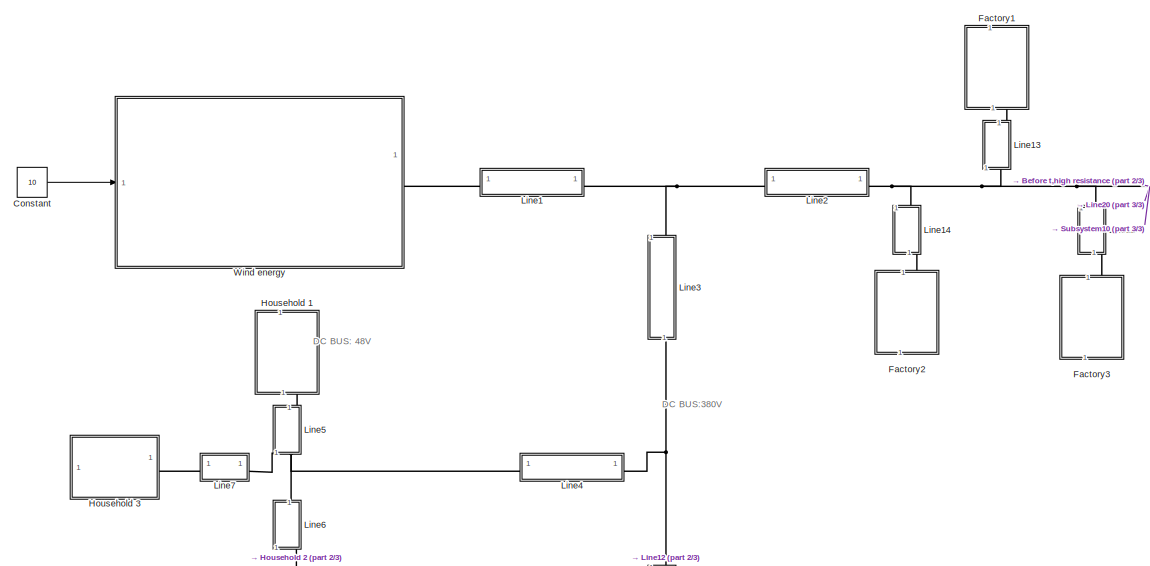
[diagram: root canvas - part 1/3, top center region]
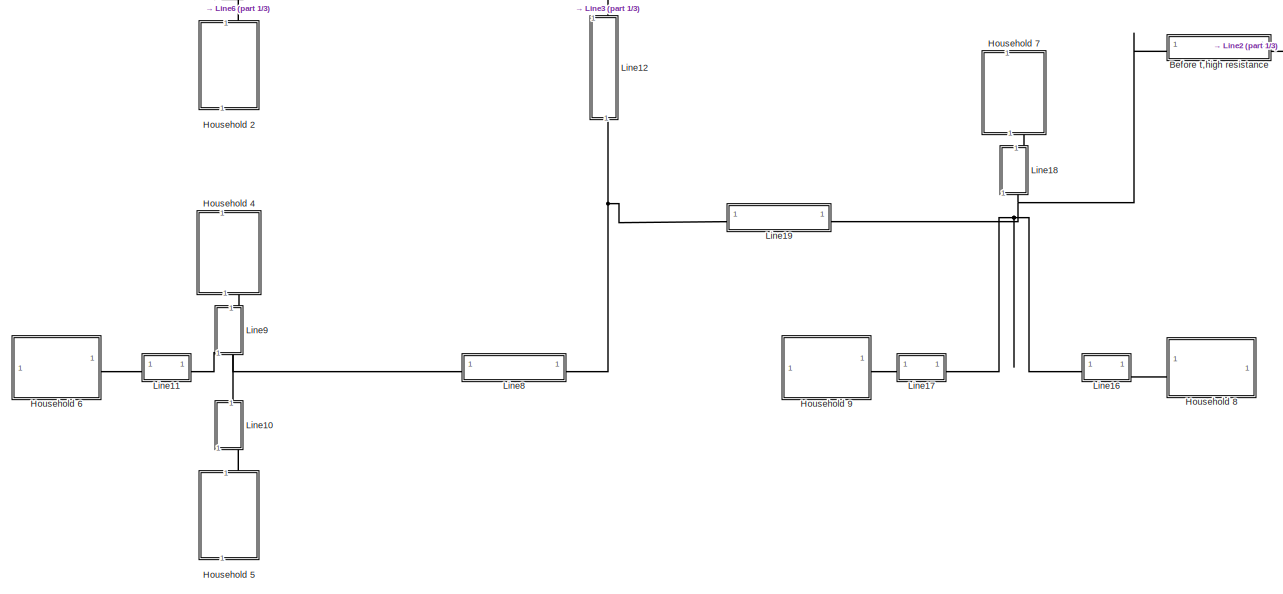
[diagram: root canvas - part 2/3, full width, bottom band]
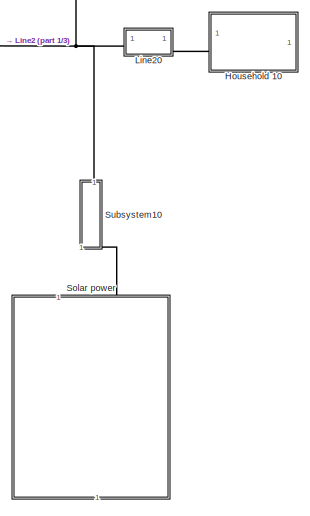
[diagram: root canvas - part 3/3, bottom right region]
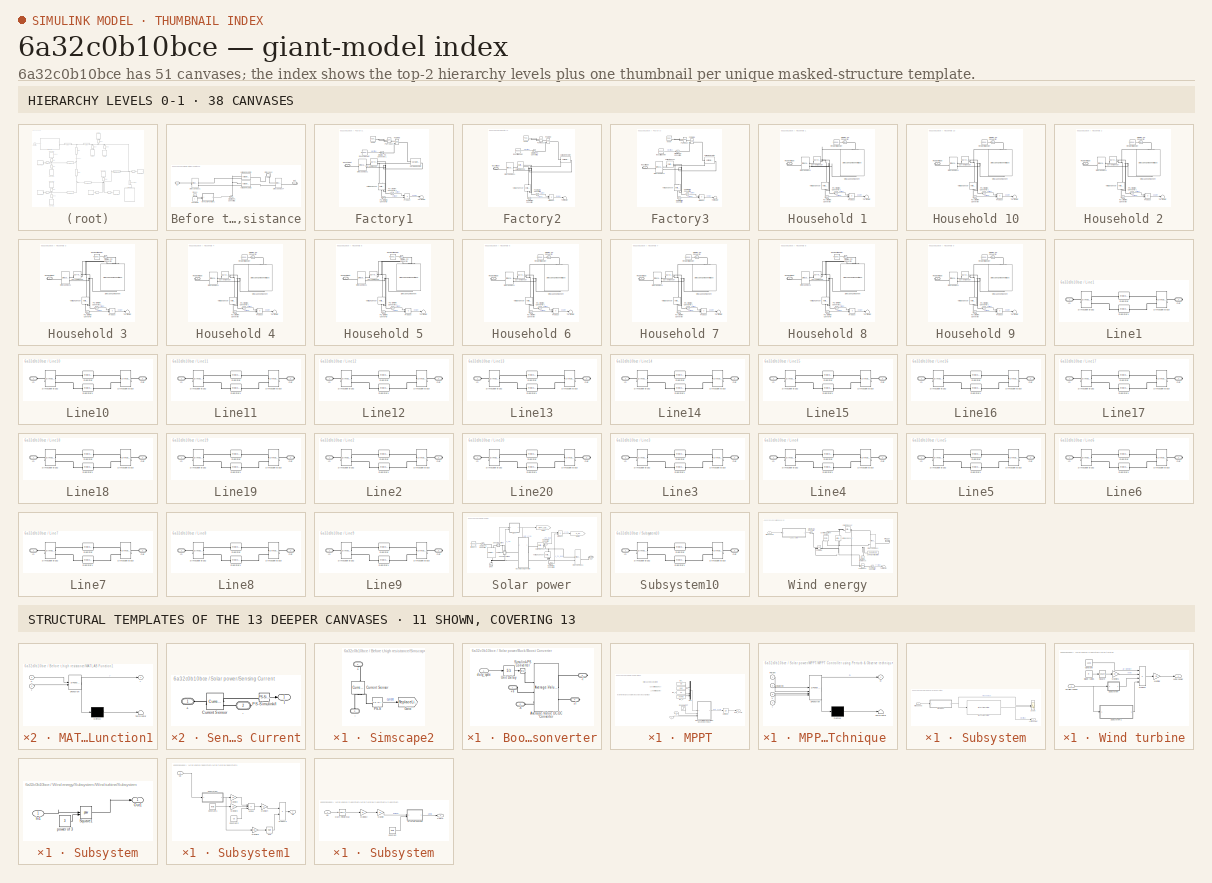
[diagram: thumbnail index - top-2 hierarchy levels (38 canvases) + 11 structural-template representatives of the remaining 13 canvases]
MODEL slx_6a32c0b10bce
KIND model
CONFIG AbsTol = auto
CONFIG EnableMultiTasking = off
CONFIG FixedStep = auto
CONFIG MaxStep = auto
CONFIG MinStep = auto
CONFIG RelTol = 1e-3
CONFIG SampleTimeConstraint = Unconstrained
CONFIG SolverName = VariableStepAuto
CONFIG StartTime = 0.0
CONFIG StopTime = 10.0
BLOCK [SubSystem] Before t,high resistance
BLOCK [Clock] Before t,high resistance/Clock1
BLOCK [Constant] Before t,high resistance/Constant2
  Value = t
BLOCK [SubSystem] Before t,high resistance/MATLAB Function1
  ErrorFcn = Stateflow.Translate.translate
  PermitHierarchicalResolution = ExplicitOnly
  SFBlockType = MATLAB Function
  TreatAsAtomicUnit = on
BLOCK [Demux] Before t,high resistance/MATLAB Function1/ Demux 
  Outputs = 1
BLOCK [S-Function] Before t,high resistance/MATLAB Function1/ SFunction 
  EnableBusSupport = on
  FunctionName = sf_sfun
  PortCounts = [2 2]
  SFcnIsStateOwnerBlock = off
  SFunctionDeploymentMode = off
  Tag = Stateflow S-Function 5
BLOCK [Terminator] Before t,high resistance/MATLAB Function1/ Terminator 
BLOCK [Inport] Before t,high resistance/MATLAB Function1/t
  Port = 2
BLOCK [Inport] Before t,high resistance/MATLAB Function1/u
BLOCK [Outport] Before t,high resistance/MATLAB Function1/y
BLOCK [SimscapeBus] Before t,high resistance/Simscape Bus1
  HierarchyStrings = High;Low
  NameLocation = top
BLOCK [SimscapeBus] Before t,high resistance/Simscape Bus4
  HierarchyStrings = High;Low
BLOCK [SubSystem] Before t,high resistance/Simscape2
  NameLocation = right
BLOCK [PMIOPort] Before t,high resistance/Simscape2/+
  NameLocation = right
  Side = Left
BLOCK [PMIOPort] Before t,high resistance/Simscape2/-
  NameLocation = left
  Port = 2
  Side = Left
BLOCK [Reference] Before t,high resistance/Simscape2/Current Sensor  REF=fl_lib/Electrical/Electrical Sensors/Current Sensor
  NameLocation = left
  SourceBlock = fl_lib/Electrical/Electrical Sensors/Current Sensor
  SourceType = Current Sensor
BLOCK [Goto] Before t,high resistance/Simscape2/Goto
  GotoTag = ReplaceLine
  IconDisplay = Signal name
  TagVisibility = global
BLOCK [Reference] Before t,high resistance/Simscape2/PS-S  REF=nesl_utility/PS-Simulink
Converter
  SourceBlock = nesl_utility/PS-Simulink\nConverter
  SourceType = PS-Simulink\nConverter
BLOCK [Reference] Before t,high resistance/Simulink-PS Converter2  REF=nesl_utility/Simulink-PS
Converter
  SourceBlock = nesl_utility/Simulink-PS\nConverter
  SourceType = Simulink-PS\nConverter
BLOCK [Reference] Before t,high resistance/Variable Resistor1  REF=fl_lib/Electrical/Electrical Elements/Variable Resistor
  SourceBlock = fl_lib/Electrical/Electrical Elements/Variable Resistor
  SourceType = Variable Resistor
BLOCK [Reference] Before t,high resistance/Variable Resistor2  REF=fl_lib/Electrical/Electrical Elements/Variable Resistor
  SourceBlock = fl_lib/Electrical/Electrical Elements/Variable Resistor
  SourceType = Variable Resistor
BLOCK [PMIOPort] Before t,high resistance/in
  Side = Left
BLOCK [PMIOPort] Before t,high resistance/out
  NameLocation = top
  Port = 2
  Side = Right
BLOCK [Constant] Constant
  Value = 10
BLOCK [SubSystem] Factory1
  NameLocation = left
BLOCK [Reference] Factory1/Current Sensor  REF=fl_lib/Electrical/Electrical Sensors/Current Sensor
  SourceBlock = fl_lib/Electrical/Electrical Sensors/Current Sensor
  SourceType = Current Sensor
BLOCK [Reference] Factory1/Industrial power   REF=simulink/Sources/Repeating
Sequence
Interpolated
  NameLocation = top
  SourceBlock = simulink/Sources/Repeating\nSequence\nInterpolated
  SourceType = Repeating Sequence Interpolated
BLOCK [PMIOPort] Factory1/IndustrialOut
  Side = Right
BLOCK [Reference] Factory1/PS Divide  REF=fl_lib/Physical Signals/Functions/PS Divide
  SourceBlock = fl_lib/Physical Signals/Functions/PS Divide
  SourceType = PS Divide
BLOCK [Reference] Factory1/PS Product  REF=fl_lib/Physical Signals/Functions/PS Product
  SourceBlock = fl_lib/Physical Signals/Functions/PS Product
  SourceType = PS Product
BLOCK [Reference] Factory1/PS-Simulink Converter  REF=nesl_utility/PS-Simulink
Converter
  SourceBlock = nesl_utility/PS-Simulink\nConverter
  SourceType = PS-Simulink\nConverter
BLOCK [Reference] Factory1/PS-Simulink Converter1  REF=nesl_utility/PS-Simulink
Converter
  SourceBlock = nesl_utility/PS-Simulink\nConverter
  SourceType = PS-Simulink\nConverter
BLOCK [Product] Factory1/Product
BLOCK [SimscapeBus] Factory1/Simscape Bus1
  HierarchyStrings = High;Low
  NameLocation = top
BLOCK [Reference] Factory1/Simulink-PS Converter1  REF=nesl_utility/Simulink-PS
Converter
  SourceBlock = nesl_utility/Simulink-PS\nConverter
  SourceType = Simulink-PS\nConverter
BLOCK [Terminator] Factory1/Terminator
BLOCK [Reference] Factory1/Variable Resistor  REF=fl_lib/Electrical/Electrical Elements/Variable Resistor
  SourceBlock = fl_lib/Electrical/Electrical Elements/Variable Resistor
  SourceType = Variable Resistor
BLOCK [Reference] Factory1/Vnom  REF=fl_lib/Physical Signals/Sources/PS Constant
  SourceBlock = fl_lib/Physical Signals/Sources/PS Constant
  SourceType = PS Constant
BLOCK [Reference] Factory1/Voltage Sensor  REF=fl_lib/Electrical/Electrical Sensors/Voltage Sensor
  NameLocation = right
  SourceBlock = fl_lib/Electrical/Electrical Sensors/Voltage Sensor
  SourceType = Voltage Sensor
BLOCK [SubSystem] Factory2
  NameLocation = right
BLOCK [Reference] Factory2/Current Sensor  REF=fl_lib/Electrical/Electrical Sensors/Current Sensor
  SourceBlock = fl_lib/Electrical/Electrical Sensors/Current Sensor
  SourceType = Current Sensor
BLOCK [Reference] Factory2/Industrial power   REF=simulink/Sources/Repeating
Sequence
Interpolated
  NameLocation = top
  SourceBlock = simulink/Sources/Repeating\nSequence\nInterpolated
  SourceType = Repeating Sequence Interpolated
BLOCK [PMIOPort] Factory2/IndustrialOut
  Side = Right
BLOCK [Reference] Factory2/PS Divide  REF=fl_lib/Physical Signals/Functions/PS Divide
  SourceBlock = fl_lib/Physical Signals/Functions/PS Divide
  SourceType = PS Divide
BLOCK [Reference] Factory2/PS Product  REF=fl_lib/Physical Signals/Functions/PS Product
  SourceBlock = fl_lib/Physical Signals/Functions/PS Product
  SourceType = PS Product
BLOCK [Reference] Factory2/PS-Simulink Converter  REF=nesl_utility/PS-Simulink
Converter
  SourceBlock = nesl_utility/PS-Simulink\nConverter
  SourceType = PS-Simulink\nConverter
BLOCK [Reference] Factory2/PS-Simulink Converter1  REF=nesl_utility/PS-Simulink
Converter
  SourceBlock = nesl_utility/PS-Simulink\nConverter
  SourceType = PS-Simulink\nConverter
BLOCK [Product] Factory2/Product
BLOCK [SimscapeBus] Factory2/Simscape Bus1
  HierarchyStrings = High;Low
  NameLocation = top
BLOCK [Reference] Factory2/Simulink-PS Converter1  REF=nesl_utility/Simulink-PS
Converter
  SourceBlock = nesl_utility/Simulink-PS\nConverter
  SourceType = Simulink-PS\nConverter
BLOCK [Terminator] Factory2/Terminator
BLOCK [Reference] Factory2/Variable Resistor  REF=fl_lib/Electrical/Electrical Elements/Variable Resistor
  SourceBlock = fl_lib/Electrical/Electrical Elements/Variable Resistor
  SourceType = Variable Resistor
BLOCK [Reference] Factory2/Vnom  REF=fl_lib/Physical Signals/Sources/PS Constant
  SourceBlock = fl_lib/Physical Signals/Sources/PS Constant
  SourceType = PS Constant
BLOCK [Reference] Factory2/Voltage Sensor  REF=fl_lib/Electrical/Electrical Sensors/Voltage Sensor
  NameLocation = right
  SourceBlock = fl_lib/Electrical/Electrical Sensors/Voltage Sensor
  SourceType = Voltage Sensor
BLOCK [SubSystem] Factory3
  NameLocation = right
BLOCK [Reference] Factory3/Current Sensor  REF=fl_lib/Electrical/Electrical Sensors/Current Sensor
  SourceBlock = fl_lib/Electrical/Electrical Sensors/Current Sensor
  SourceType = Current Sensor
BLOCK [Reference] Factory3/Industrial power   REF=simulink/Sources/Repeating
Sequence
Interpolated
  NameLocation = top
  SourceBlock = simulink/Sources/Repeating\nSequence\nInterpolated
  SourceType = Repeating Sequence Interpolated
BLOCK [PMIOPort] Factory3/IndustrialOut
  Side = Right
BLOCK [Reference] Factory3/PS Divide  REF=fl_lib/Physical Signals/Functions/PS Divide
  SourceBlock = fl_lib/Physical Signals/Functions/PS Divide
  SourceType = PS Divide
BLOCK [Reference] Factory3/PS Product  REF=fl_lib/Physical Signals/Functions/PS Product
  SourceBlock = fl_lib/Physical Signals/Functions/PS Product
  SourceType = PS Product
BLOCK [Reference] Factory3/PS-Simulink Converter  REF=nesl_utility/PS-Simulink
Converter
  SourceBlock = nesl_utility/PS-Simulink\nConverter
  SourceType = PS-Simulink\nConverter
BLOCK [Reference] Factory3/PS-Simulink Converter1  REF=nesl_utility/PS-Simulink
Converter
  SourceBlock = nesl_utility/PS-Simulink\nConverter
  SourceType = PS-Simulink\nConverter
BLOCK [Product] Factory3/Product
BLOCK [SimscapeBus] Factory3/Simscape Bus1
  HierarchyStrings = High;Low
  NameLocation = top
BLOCK [Reference] Factory3/Simulink-PS Converter1  REF=nesl_utility/Simulink-PS
Converter
  SourceBlock = nesl_utility/Simulink-PS\nConverter
  SourceType = Simulink-PS\nConverter
BLOCK [Terminator] Factory3/Terminator
BLOCK [Reference] Factory3/Variable Resistor  REF=fl_lib/Electrical/Electrical Elements/Variable Resistor
  SourceBlock = fl_lib/Electrical/Electrical Elements/Variable Resistor
  SourceType = Variable Resistor
BLOCK [Reference] Factory3/Vnom  REF=fl_lib/Physical Signals/Sources/PS Constant
  SourceBlock = fl_lib/Physical Signals/Sources/PS Constant
  SourceType = PS Constant
BLOCK [Reference] Factory3/Voltage Sensor  REF=fl_lib/Electrical/Electrical Sensors/Voltage Sensor
  NameLocation = right
  SourceBlock = fl_lib/Electrical/Electrical Sensors/Voltage Sensor
  SourceType = Voltage Sensor
BLOCK [SubSystem] Household 1
  NameLocation = left
BLOCK [Reference] Household 1/Current Sensor  REF=fl_lib/Electrical/Electrical Sensors/Current Sensor
  SourceBlock = fl_lib/Electrical/Electrical Sensors/Current Sensor
  SourceType = Current Sensor
BLOCK [Reference] Household 1/PS-Simulink Converter  REF=nesl_utility/PS-Simulink
Converter
  SourceBlock = nesl_utility/PS-Simulink\nConverter
  SourceType = PS-Simulink\nConverter
BLOCK [Reference] Household 1/PS-Simulink Converter1  REF=nesl_utility/PS-Simulink
Converter
  SourceBlock = nesl_utility/PS-Simulink\nConverter
  SourceType = PS-Simulink\nConverter
BLOCK [Product] Household 1/Product
BLOCK [Reference] Household 1/Residential power   REF=simulink/Sources/Repeating
Sequence
Interpolated
  NameLocation = top
  SourceBlock = simulink/Sources/Repeating\nSequence\nInterpolated
  SourceType = Repeating Sequence Interpolated
BLOCK [PMIOPort] Household 1/ResidentialOut
  Side = Right
BLOCK [SimscapeBus] Household 1/Simscape Bus1
  HierarchyStrings = High;Low
  NameLocation = top
BLOCK [SimscapeComponentBlock] Household 1/Simscape Component
  ClassName = ResidentialPowerLoad
  ComponentPath = ResidentialPowerLoad
  ComponentVariantNames = ["ResidentialPowerLoad"]
  ComponentVariants = ["ResidentialPowerLoad"]
  CopyFcn = simscape.engine.sli.internal.componentblockcallback(gcbh,'COPY')
  InternalSimscapePortConfiguration = {"Bottom":[],"Left":[{"id":"Power","label":"P","type":"input"},{"id":"p","label":"+","type":"foundation.electrical.electrical"}],"Right":[{"id":"n","label":"-","type":"foundation.electrical.electrical"}],"Top":[]}  <repeated x10 — deduplicated; at blocks: Simscape Component>
  MaskDisplay = color('red');plot([0 1 1 0 0],[0 0 1 1 0]);plot([0.7,1],[1,0.7]);plot(-2,-1.75);plot(3, 1);disp('\n.ssc\nUnresolved')
  MaskType = ResidentialPowerLoad
  NameLocation = left
  PreCopyFcn = simscape.engine.sli.internal.componentblockcallback(gcbh,'PRECOPY')
  PreDeleteFcn = simscape.engine.sli.internal.componentblockcallback(gcbh,'PREDELETE')
  SchemaVersion = 1
  SourceFile = ResidentialPowerLoad
  i = 0
  i_nominal_specify = off
  i_nominal_unit = A
  i_nominal_value = 1
  i_priority = None
  i_specify = off
  i_unit = A
  v = 0
  v_nominal_specify = off
  v_nominal_unit = V
  v_nominal_value = 1
  v_priority = None
  v_specify = off
  v_unit = V
BLOCK [Reference] Household 1/Simulink-PS Converter  REF=nesl_utility/Simulink-PS
Converter
  SourceBlock = nesl_utility/Simulink-PS\nConverter
  SourceType = Simulink-PS\nConverter
BLOCK [Terminator] Household 1/Terminator
BLOCK [Reference] Household 1/Voltage Sensor  REF=fl_lib/Electrical/Electrical Sensors/Voltage Sensor
  NameLocation = right
  SourceBlock = fl_lib/Electrical/Electrical Sensors/Voltage Sensor
  SourceType = Voltage Sensor
BLOCK [SubSystem] Household 10
  NameLocation = top
BLOCK [Reference] Household 10/Current Sensor  REF=fl_lib/Electrical/Electrical Sensors/Current Sensor
  SourceBlock = fl_lib/Electrical/Electrical Sensors/Current Sensor
  SourceType = Current Sensor
BLOCK [Reference] Household 10/PS-Simulink Converter  REF=nesl_utility/PS-Simulink
Converter
  SourceBlock = nesl_utility/PS-Simulink\nConverter
  SourceType = PS-Simulink\nConverter
BLOCK [Reference] Household 10/PS-Simulink Converter1  REF=nesl_utility/PS-Simulink
Converter
  SourceBlock = nesl_utility/PS-Simulink\nConverter
  SourceType = PS-Simulink\nConverter
BLOCK [Product] Household 10/Product
BLOCK [Reference] Household 10/Residential power   REF=simulink/Sources/Repeating
Sequence
Interpolated
  NameLocation = top
  SourceBlock = simulink/Sources/Repeating\nSequence\nInterpolated
  SourceType = Repeating Sequence Interpolated
BLOCK [PMIOPort] Household 10/ResidentialOut
  Side = Right
BLOCK [SimscapeBus] Household 10/Simscape Bus1
  HierarchyStrings = High;Low
  NameLocation = top
BLOCK [SimscapeComponentBlock] Household 10/Simscape Component
  ClassName = ResidentialPowerLoad
  ComponentPath = ResidentialPowerLoad
  ComponentVariantNames = ["ResidentialPowerLoad"]
  ComponentVariants = ["ResidentialPowerLoad"]
  CopyFcn = simscape.engine.sli.internal.componentblockcallback(gcbh,'COPY')
  MaskDisplay = color('red');plot([0 1 1 0 0],[0 0 1 1 0]);plot([0.7,1],[1,0.7]);plot(-2,-1.75);plot(3, 1);disp('\n.ssc\nUnresolved')
  MaskType = ResidentialPowerLoad
  NameLocation = left
  PreCopyFcn = simscape.engine.sli.internal.componentblockcallback(gcbh,'PRECOPY')
  PreDeleteFcn = simscape.engine.sli.internal.componentblockcallback(gcbh,'PREDELETE')
  SchemaVersion = 1
  SourceFile = ResidentialPowerLoad
  i = 0
  i_nominal_specify = off
  i_nominal_unit = A
  i_nominal_value = 1
  i_priority = None
  i_specify = off
  i_unit = A
  v = 0
  v_nominal_specify = off
  v_nominal_unit = V
  v_nominal_value = 1
  v_priority = None
  v_specify = off
  v_unit = V
BLOCK [Reference] Household 10/Simulink-PS Converter  REF=nesl_utility/Simulink-PS
Converter
  SourceBlock = nesl_utility/Simulink-PS\nConverter
  SourceType = Simulink-PS\nConverter
BLOCK [Terminator] Household 10/Terminator
BLOCK [Reference] Household 10/Voltage Sensor  REF=fl_lib/Electrical/Electrical Sensors/Voltage Sensor
  NameLocation = right
  SourceBlock = fl_lib/Electrical/Electrical Sensors/Voltage Sensor
  SourceType = Voltage Sensor
BLOCK [SubSystem] Household 2
  NameLocation = right
BLOCK [Reference] Household 2/Current Sensor  REF=fl_lib/Electrical/Electrical Sensors/Current Sensor
  SourceBlock = fl_lib/Electrical/Electrical Sensors/Current Sensor
  SourceType = Current Sensor
BLOCK [Reference] Household 2/PS-Simulink Converter  REF=nesl_utility/PS-Simulink
Converter
  SourceBlock = nesl_utility/PS-Simulink\nConverter
  SourceType = PS-Simulink\nConverter
BLOCK [Reference] Household 2/PS-Simulink Converter1  REF=nesl_utility/PS-Simulink
Converter
  SourceBlock = nesl_utility/PS-Simulink\nConverter
  SourceType = PS-Simulink\nConverter
BLOCK [Product] Household 2/Product
BLOCK [Reference] Household 2/Residential power   REF=simulink/Sources/Repeating
Sequence
Interpolated
  NameLocation = top
  SourceBlock = simulink/Sources/Repeating\nSequence\nInterpolated
  SourceType = Repeating Sequence Interpolated
BLOCK [PMIOPort] Household 2/ResidentialOut
  Side = Right
BLOCK [SimscapeBus] Household 2/Simscape Bus1
  HierarchyStrings = High;Low
  NameLocation = top
BLOCK [SimscapeComponentBlock] Household 2/Simscape Component
  ClassName = ResidentialPowerLoad
  ComponentPath = ResidentialPowerLoad
  ComponentVariantNames = ["ResidentialPowerLoad"]
  ComponentVariants = ["ResidentialPowerLoad"]
  CopyFcn = simscape.engine.sli.internal.componentblockcallback(gcbh,'COPY')
  MaskDisplay = color('red');plot([0 1 1 0 0],[0 0 1 1 0]);plot([0.7,1],[1,0.7]);plot(-2,-1.75);plot(3, 1);disp('\n.ssc\nUnresolved')
  MaskType = ResidentialPowerLoad
  NameLocation = left
  PreCopyFcn = simscape.engine.sli.internal.componentblockcallback(gcbh,'PRECOPY')
  PreDeleteFcn = simscape.engine.sli.internal.componentblockcallback(gcbh,'PREDELETE')
  SchemaVersion = 1
  SourceFile = ResidentialPowerLoad
  i = 0
  i_nominal_specify = off
  i_nominal_unit = A
  i_nominal_value = 1
  i_priority = None
  i_specify = off
  i_unit = A
  v = 0
  v_nominal_specify = off
  v_nominal_unit = V
  v_nominal_value = 1
  v_priority = None
  v_specify = off
  v_unit = V
BLOCK [Reference] Household 2/Simulink-PS Converter  REF=nesl_utility/Simulink-PS
Converter
  SourceBlock = nesl_utility/Simulink-PS\nConverter
  SourceType = Simulink-PS\nConverter
BLOCK [Terminator] Household 2/Terminator
BLOCK [Reference] Household 2/Voltage Sensor  REF=fl_lib/Electrical/Electrical Sensors/Voltage Sensor
  NameLocation = right
  SourceBlock = fl_lib/Electrical/Electrical Sensors/Voltage Sensor
  SourceType = Voltage Sensor
BLOCK [SubSystem] Household 3
BLOCK [Reference] Household 3/Current Sensor  REF=fl_lib/Electrical/Electrical Sensors/Current Sensor
  SourceBlock = fl_lib/Electrical/Electrical Sensors/Current Sensor
  SourceType = Current Sensor
BLOCK [Reference] Household 3/PS-Simulink Converter  REF=nesl_utility/PS-Simulink
Converter
  SourceBlock = nesl_utility/PS-Simulink\nConverter
  SourceType = PS-Simulink\nConverter
BLOCK [Reference] Household 3/PS-Simulink Converter1  REF=nesl_utility/PS-Simulink
Converter
  SourceBlock = nesl_utility/PS-Simulink\nConverter
  SourceType = PS-Simulink\nConverter
BLOCK [Product] Household 3/Product
BLOCK [Reference] Household 3/Residential power   REF=simulink/Sources/Repeating
Sequence
Interpolated
  NameLocation = top
  SourceBlock = simulink/Sources/Repeating\nSequence\nInterpolated
  SourceType = Repeating Sequence Interpolated
BLOCK [PMIOPort] Household 3/ResidentialOut
  Side = Right
BLOCK [SimscapeBus] Household 3/Simscape Bus1
  HierarchyStrings = High;Low
  NameLocation = top
BLOCK [SimscapeComponentBlock] Household 3/Simscape Component
  ClassName = ResidentialPowerLoad
  ComponentPath = ResidentialPowerLoad
  ComponentVariantNames = ["ResidentialPowerLoad"]
  ComponentVariants = ["ResidentialPowerLoad"]
  CopyFcn = simscape.engine.sli.internal.componentblockcallback(gcbh,'COPY')
  MaskDisplay = color('red');plot([0 1 1 0 0],[0 0 1 1 0]);plot([0.7,1],[1,0.7]);plot(-2,-1.75);plot(3, 1);disp('\n.ssc\nUnresolved')
  MaskType = ResidentialPowerLoad
  NameLocation = left
  PreCopyFcn = simscape.engine.sli.internal.componentblockcallback(gcbh,'PRECOPY')
  PreDeleteFcn = simscape.engine.sli.internal.componentblockcallback(gcbh,'PREDELETE')
  SchemaVersion = 1
  SourceFile = ResidentialPowerLoad
  i = 0
  i_nominal_specify = off
  i_nominal_unit = A
  i_nominal_value = 1
  i_priority = None
  i_specify = off
  i_unit = A
  v = 0
  v_nominal_specify = off
  v_nominal_unit = V
  v_nominal_value = 1
  v_priority = None
  v_specify = off
  v_unit = V
BLOCK [Reference] Household 3/Simulink-PS Converter  REF=nesl_utility/Simulink-PS
Converter
  SourceBlock = nesl_utility/Simulink-PS\nConverter
  SourceType = Simulink-PS\nConverter
BLOCK [Terminator] Household 3/Terminator
BLOCK [Reference] Household 3/Voltage Sensor  REF=fl_lib/Electrical/Electrical Sensors/Voltage Sensor
  NameLocation = right
  SourceBlock = fl_lib/Electrical/Electrical Sensors/Voltage Sensor
  SourceType = Voltage Sensor
BLOCK [SubSystem] Household 4
  NameLocation = left
BLOCK [Reference] Household 4/Current Sensor  REF=fl_lib/Electrical/Electrical Sensors/Current Sensor
  SourceBlock = fl_lib/Electrical/Electrical Sensors/Current Sensor
  SourceType = Current Sensor
BLOCK [Reference] Household 4/PS-Simulink Converter  REF=nesl_utility/PS-Simulink
Converter
  SourceBlock = nesl_utility/PS-Simulink\nConverter
  SourceType = PS-Simulink\nConverter
BLOCK [Reference] Household 4/PS-Simulink Converter1  REF=nesl_utility/PS-Simulink
Converter
  SourceBlock = nesl_utility/PS-Simulink\nConverter
  SourceType = PS-Simulink\nConverter
BLOCK [Product] Household 4/Product
BLOCK [Reference] Household 4/Residential power   REF=simulink/Sources/Repeating
Sequence
Interpolated
  NameLocation = top
  SourceBlock = simulink/Sources/Repeating\nSequence\nInterpolated
  SourceType = Repeating Sequence Interpolated
BLOCK [PMIOPort] Household 4/ResidentialOut
  Side = Right
BLOCK [SimscapeBus] Household 4/Simscape Bus1
  HierarchyStrings = High;Low
  NameLocation = top
BLOCK [SimscapeComponentBlock] Household 4/Simscape Component
  ClassName = ResidentialPowerLoad
  ComponentPath = ResidentialPowerLoad
  ComponentVariantNames = ["ResidentialPowerLoad"]
  ComponentVariants = ["ResidentialPowerLoad"]
  CopyFcn = simscape.engine.sli.internal.componentblockcallback(gcbh,'COPY')
  MaskDisplay = color('red');plot([0 1 1 0 0],[0 0 1 1 0]);plot([0.7,1],[1,0.7]);plot(-2,-1.75);plot(3, 1);disp('\n.ssc\nUnresolved')
  MaskType = ResidentialPowerLoad
  NameLocation = left
  PreCopyFcn = simscape.engine.sli.internal.componentblockcallback(gcbh,'PRECOPY')
  PreDeleteFcn = simscape.engine.sli.internal.componentblockcallback(gcbh,'PREDELETE')
  SchemaVersion = 1
  SourceFile = ResidentialPowerLoad
  i = 0
  i_nominal_specify = off
  i_nominal_unit = A
  i_nominal_value = 1
  i_priority = None
  i_specify = off
  i_unit = A
  v = 0
  v_nominal_specify = off
  v_nominal_unit = V
  v_nominal_value = 1
  v_priority = None
  v_specify = off
  v_unit = V
BLOCK [Reference] Household 4/Simulink-PS Converter  REF=nesl_utility/Simulink-PS
Converter
  SourceBlock = nesl_utility/Simulink-PS\nConverter
  SourceType = Simulink-PS\nConverter
BLOCK [Terminator] Household 4/Terminator
BLOCK [Reference] Household 4/Voltage Sensor  REF=fl_lib/Electrical/Electrical Sensors/Voltage Sensor
  NameLocation = right
  SourceBlock = fl_lib/Electrical/Electrical Sensors/Voltage Sensor
  SourceType = Voltage Sensor
BLOCK [SubSystem] Household 5
  NameLocation = right
BLOCK [Reference] Household 5/Current Sensor  REF=fl_lib/Electrical/Electrical Sensors/Current Sensor
  SourceBlock = fl_lib/Electrical/Electrical Sensors/Current Sensor
  SourceType = Current Sensor
BLOCK [Reference] Household 5/PS-Simulink Converter  REF=nesl_utility/PS-Simulink
Converter
  SourceBlock = nesl_utility/PS-Simulink\nConverter
  SourceType = PS-Simulink\nConverter
BLOCK [Reference] Household 5/PS-Simulink Converter1  REF=nesl_utility/PS-Simulink
Converter
  SourceBlock = nesl_utility/PS-Simulink\nConverter
  SourceType = PS-Simulink\nConverter
BLOCK [Product] Household 5/Product
BLOCK [Reference] Household 5/Residential power   REF=simulink/Sources/Repeating
Sequence
Interpolated
  NameLocation = top
  SourceBlock = simulink/Sources/Repeating\nSequence\nInterpolated
  SourceType = Repeating Sequence Interpolated
BLOCK [PMIOPort] Household 5/ResidentialOut
  Side = Right
BLOCK [SimscapeBus] Household 5/Simscape Bus1
  HierarchyStrings = High;Low
  NameLocation = top
BLOCK [SimscapeComponentBlock] Household 5/Simscape Component
  ClassName = ResidentialPowerLoad
  ComponentPath = ResidentialPowerLoad
  ComponentVariantNames = ["ResidentialPowerLoad"]
  ComponentVariants = ["ResidentialPowerLoad"]
  CopyFcn = simscape.engine.sli.internal.componentblockcallback(gcbh,'COPY')
  MaskDisplay = color('red');plot([0 1 1 0 0],[0 0 1 1 0]);plot([0.7,1],[1,0.7]);plot(-2,-1.75);plot(3, 1);disp('\n.ssc\nUnresolved')
  MaskType = ResidentialPowerLoad
  NameLocation = left
  PreCopyFcn = simscape.engine.sli.internal.componentblockcallback(gcbh,'PRECOPY')
  PreDeleteFcn = simscape.engine.sli.internal.componentblockcallback(gcbh,'PREDELETE')
  SchemaVersion = 1
  SourceFile = ResidentialPowerLoad
  i = 0
  i_nominal_specify = off
  i_nominal_unit = A
  i_nominal_value = 1
  i_priority = None
  i_specify = off
  i_unit = A
  v = 0
  v_nominal_specify = off
  v_nominal_unit = V
  v_nominal_value = 1
  v_priority = None
  v_specify = off
  v_unit = V
BLOCK [Reference] Household 5/Simulink-PS Converter  REF=nesl_utility/Simulink-PS
Converter
  SourceBlock = nesl_utility/Simulink-PS\nConverter
  SourceType = Simulink-PS\nConverter
BLOCK [Terminator] Household 5/Terminator
BLOCK [Reference] Household 5/Voltage Sensor  REF=fl_lib/Electrical/Electrical Sensors/Voltage Sensor
  NameLocation = right
  SourceBlock = fl_lib/Electrical/Electrical Sensors/Voltage Sensor
  SourceType = Voltage Sensor
BLOCK [SubSystem] Household 6
BLOCK [Reference] Household 6/Current Sensor  REF=fl_lib/Electrical/Electrical Sensors/Current Sensor
  SourceBlock = fl_lib/Electrical/Electrical Sensors/Current Sensor
  SourceType = Current Sensor
BLOCK [Reference] Household 6/PS-Simulink Converter  REF=nesl_utility/PS-Simulink
Converter
  SourceBlock = nesl_utility/PS-Simulink\nConverter
  SourceType = PS-Simulink\nConverter
BLOCK [Reference] Household 6/PS-Simulink Converter1  REF=nesl_utility/PS-Simulink
Converter
  SourceBlock = nesl_utility/PS-Simulink\nConverter
  SourceType = PS-Simulink\nConverter
BLOCK [Product] Household 6/Product
BLOCK [Reference] Household 6/Residential power   REF=simulink/Sources/Repeating
Sequence
Interpolated
  NameLocation = top
  SourceBlock = simulink/Sources/Repeating\nSequence\nInterpolated
  SourceType = Repeating Sequence Interpolated
BLOCK [PMIOPort] Household 6/ResidentialOut
  Side = Right
BLOCK [SimscapeBus] Household 6/Simscape Bus1
  HierarchyStrings = High;Low
  NameLocation = top
BLOCK [SimscapeComponentBlock] Household 6/Simscape Component
  ClassName = ResidentialPowerLoad
  ComponentPath = ResidentialPowerLoad
  ComponentVariantNames = ["ResidentialPowerLoad"]
  ComponentVariants = ["ResidentialPowerLoad"]
  CopyFcn = simscape.engine.sli.internal.componentblockcallback(gcbh,'COPY')
  MaskDisplay = color('red');plot([0 1 1 0 0],[0 0 1 1 0]);plot([0.7,1],[1,0.7]);plot(-2,-1.75);plot(3, 1);disp('\n.ssc\nUnresolved')
  MaskType = ResidentialPowerLoad
  NameLocation = left
  PreCopyFcn = simscape.engine.sli.internal.componentblockcallback(gcbh,'PRECOPY')
  PreDeleteFcn = simscape.engine.sli.internal.componentblockcallback(gcbh,'PREDELETE')
  SchemaVersion = 1
  SourceFile = ResidentialPowerLoad
  i = 0
  i_nominal_specify = off
  i_nominal_unit = A
  i_nominal_value = 1
  i_priority = None
  i_specify = off
  i_unit = A
  v = 0
  v_nominal_specify = off
  v_nominal_unit = V
  v_nominal_value = 1
  v_priority = None
  v_specify = off
  v_unit = V
BLOCK [Reference] Household 6/Simulink-PS Converter  REF=nesl_utility/Simulink-PS
Converter
  SourceBlock = nesl_utility/Simulink-PS\nConverter
  SourceType = Simulink-PS\nConverter
BLOCK [Terminator] Household 6/Terminator
BLOCK [Reference] Household 6/Voltage Sensor  REF=fl_lib/Electrical/Electrical Sensors/Voltage Sensor
  NameLocation = right
  SourceBlock = fl_lib/Electrical/Electrical Sensors/Voltage Sensor
  SourceType = Voltage Sensor
BLOCK [SubSystem] Household 7
  NameLocation = left
BLOCK [Reference] Household 7/Current Sensor  REF=fl_lib/Electrical/Electrical Sensors/Current Sensor
  SourceBlock = fl_lib/Electrical/Electrical Sensors/Current Sensor
  SourceType = Current Sensor
BLOCK [Reference] Household 7/PS-Simulink Converter  REF=nesl_utility/PS-Simulink
Converter
  SourceBlock = nesl_utility/PS-Simulink\nConverter
  SourceType = PS-Simulink\nConverter
BLOCK [Reference] Household 7/PS-Simulink Converter1  REF=nesl_utility/PS-Simulink
Converter
  SourceBlock = nesl_utility/PS-Simulink\nConverter
  SourceType = PS-Simulink\nConverter
BLOCK [Product] Household 7/Product
BLOCK [Reference] Household 7/Residential power   REF=simulink/Sources/Repeating
Sequence
Interpolated
  NameLocation = top
  SourceBlock = simulink/Sources/Repeating\nSequence\nInterpolated
  SourceType = Repeating Sequence Interpolated
BLOCK [PMIOPort] Household 7/ResidentialOut
  Side = Right
BLOCK [SimscapeBus] Household 7/Simscape Bus1
  HierarchyStrings = High;Low
  NameLocation = top
BLOCK [SimscapeComponentBlock] Household 7/Simscape Component
  ClassName = ResidentialPowerLoad
  ComponentPath = ResidentialPowerLoad
  ComponentVariantNames = ["ResidentialPowerLoad"]
  ComponentVariants = ["ResidentialPowerLoad"]
  CopyFcn = simscape.engine.sli.internal.componentblockcallback(gcbh,'COPY')
  MaskDisplay = color('red');plot([0 1 1 0 0],[0 0 1 1 0]);plot([0.7,1],[1,0.7]);plot(-2,-1.75);plot(3, 1);disp('\n.ssc\nUnresolved')
  MaskType = ResidentialPowerLoad
  NameLocation = left
  PreCopyFcn = simscape.engine.sli.internal.componentblockcallback(gcbh,'PRECOPY')
  PreDeleteFcn = simscape.engine.sli.internal.componentblockcallback(gcbh,'PREDELETE')
  SchemaVersion = 1
  SourceFile = ResidentialPowerLoad
  i = 0
  i_nominal_specify = off
  i_nominal_unit = A
  i_nominal_value = 1
  i_priority = None
  i_specify = off
  i_unit = A
  v = 0
  v_nominal_specify = off
  v_nominal_unit = V
  v_nominal_value = 1
  v_priority = None
  v_specify = off
  v_unit = V
BLOCK [Reference] Household 7/Simulink-PS Converter  REF=nesl_utility/Simulink-PS
Converter
  SourceBlock = nesl_utility/Simulink-PS\nConverter
  SourceType = Simulink-PS\nConverter
BLOCK [Terminator] Household 7/Terminator
BLOCK [Reference] Household 7/Voltage Sensor  REF=fl_lib/Electrical/Electrical Sensors/Voltage Sensor
  NameLocation = right
  SourceBlock = fl_lib/Electrical/Electrical Sensors/Voltage Sensor
  SourceType = Voltage Sensor
BLOCK [SubSystem] Household 8
  NameLocation = top
BLOCK [Reference] Household 8/Current Sensor  REF=fl_lib/Electrical/Electrical Sensors/Current Sensor
  SourceBlock = fl_lib/Electrical/Electrical Sensors/Current Sensor
  SourceType = Current Sensor
BLOCK [Reference] Household 8/PS-Simulink Converter  REF=nesl_utility/PS-Simulink
Converter
  SourceBlock = nesl_utility/PS-Simulink\nConverter
  SourceType = PS-Simulink\nConverter
BLOCK [Reference] Household 8/PS-Simulink Converter1  REF=nesl_utility/PS-Simulink
Converter
  SourceBlock = nesl_utility/PS-Simulink\nConverter
  SourceType = PS-Simulink\nConverter
BLOCK [Product] Household 8/Product
BLOCK [Reference] Household 8/Residential power   REF=simulink/Sources/Repeating
Sequence
Interpolated
  NameLocation = top
  SourceBlock = simulink/Sources/Repeating\nSequence\nInterpolated
  SourceType = Repeating Sequence Interpolated
BLOCK [PMIOPort] Household 8/ResidentialOut
  Side = Right
BLOCK [SimscapeBus] Household 8/Simscape Bus1
  HierarchyStrings = High;Low
  NameLocation = top
BLOCK [SimscapeComponentBlock] Household 8/Simscape Component
  ClassName = ResidentialPowerLoad
  ComponentPath = ResidentialPowerLoad
  ComponentVariantNames = ["ResidentialPowerLoad"]
  ComponentVariants = ["ResidentialPowerLoad"]
  CopyFcn = simscape.engine.sli.internal.componentblockcallback(gcbh,'COPY')
  MaskDisplay = color('red');plot([0 1 1 0 0],[0 0 1 1 0]);plot([0.7,1],[1,0.7]);plot(-2,-1.75);plot(3, 1);disp('\n.ssc\nUnresolved')
  MaskType = ResidentialPowerLoad
  NameLocation = left
  PreCopyFcn = simscape.engine.sli.internal.componentblockcallback(gcbh,'PRECOPY')
  PreDeleteFcn = simscape.engine.sli.internal.componentblockcallback(gcbh,'PREDELETE')
  SchemaVersion = 1
  SourceFile = ResidentialPowerLoad
  i = 0
  i_nominal_specify = off
  i_nominal_unit = A
  i_nominal_value = 1
  i_priority = None
  i_specify = off
  i_unit = A
  v = 0
  v_nominal_specify = off
  v_nominal_unit = V
  v_nominal_value = 1
  v_priority = None
  v_specify = off
  v_unit = V
BLOCK [Reference] Household 8/Simulink-PS Converter  REF=nesl_utility/Simulink-PS
Converter
  SourceBlock = nesl_utility/Simulink-PS\nConverter
  SourceType = Simulink-PS\nConverter
BLOCK [Terminator] Household 8/Terminator
BLOCK [Reference] Household 8/Voltage Sensor  REF=fl_lib/Electrical/Electrical Sensors/Voltage Sensor
  NameLocation = right
  SourceBlock = fl_lib/Electrical/Electrical Sensors/Voltage Sensor
  SourceType = Voltage Sensor
BLOCK [SubSystem] Household 9
BLOCK [Reference] Household 9/Current Sensor  REF=fl_lib/Electrical/Electrical Sensors/Current Sensor
  SourceBlock = fl_lib/Electrical/Electrical Sensors/Current Sensor
  SourceType = Current Sensor
BLOCK [Reference] Household 9/PS-Simulink Converter  REF=nesl_utility/PS-Simulink
Converter
  SourceBlock = nesl_utility/PS-Simulink\nConverter
  SourceType = PS-Simulink\nConverter
BLOCK [Reference] Household 9/PS-Simulink Converter1  REF=nesl_utility/PS-Simulink
Converter
  SourceBlock = nesl_utility/PS-Simulink\nConverter
  SourceType = PS-Simulink\nConverter
BLOCK [Product] Household 9/Product
BLOCK [Reference] Household 9/Residential power   REF=simulink/Sources/Repeating
Sequence
Interpolated
  NameLocation = top
  SourceBlock = simulink/Sources/Repeating\nSequence\nInterpolated
  SourceType = Repeating Sequence Interpolated
BLOCK [PMIOPort] Household 9/ResidentialOut
  Side = Right
BLOCK [SimscapeBus] Household 9/Simscape Bus1
  HierarchyStrings = High;Low
  NameLocation = top
BLOCK [SimscapeComponentBlock] Household 9/Simscape Component
  ClassName = ResidentialPowerLoad
  ComponentPath = ResidentialPowerLoad
  ComponentVariantNames = ["ResidentialPowerLoad"]
  ComponentVariants = ["ResidentialPowerLoad"]
  CopyFcn = simscape.engine.sli.internal.componentblockcallback(gcbh,'COPY')
  MaskDisplay = color('red');plot([0 1 1 0 0],[0 0 1 1 0]);plot([0.7,1],[1,0.7]);plot(-2,-1.75);plot(3, 1);disp('\n.ssc\nUnresolved')
  MaskType = ResidentialPowerLoad
  NameLocation = left
  PreCopyFcn = simscape.engine.sli.internal.componentblockcallback(gcbh,'PRECOPY')
  PreDeleteFcn = simscape.engine.sli.internal.componentblockcallback(gcbh,'PREDELETE')
  SchemaVersion = 1
  SourceFile = ResidentialPowerLoad
  i = 0
  i_nominal_specify = off
  i_nominal_unit = A
  i_nominal_value = 1
  i_priority = None
  i_specify = off
  i_unit = A
  v = 0
  v_nominal_specify = off
  v_nominal_unit = V
  v_nominal_value = 1
  v_priority = None
  v_specify = off
  v_unit = V
BLOCK [Reference] Household 9/Simulink-PS Converter  REF=nesl_utility/Simulink-PS
Converter
  SourceBlock = nesl_utility/Simulink-PS\nConverter
  SourceType = Simulink-PS\nConverter
BLOCK [Terminator] Household 9/Terminator
BLOCK [Reference] Household 9/Voltage Sensor  REF=fl_lib/Electrical/Electrical Sensors/Voltage Sensor
  NameLocation = right
  SourceBlock = fl_lib/Electrical/Electrical Sensors/Voltage Sensor
  SourceType = Voltage Sensor
BLOCK [SubSystem] Line1
  NameLocation = top
BLOCK [PMIOPort] Line1/In
  Side = Left
BLOCK [PMIOPort] Line1/Out
  Port = 2
  Side = Right
BLOCK [Reference] Line1/Resistor  REF=fl_lib/Electrical/Electrical Elements/Resistor
  SourceBlock = fl_lib/Electrical/Electrical Elements/Resistor
  SourceType = Resistor
BLOCK [Reference] Line1/Resistor1  REF=fl_lib/Electrical/Electrical Elements/Resistor
  SourceBlock = fl_lib/Electrical/Electrical Elements/Resistor
  SourceType = Resistor
BLOCK [SimscapeBus] Line1/Simscape Bus2
  HierarchyStrings = High;Low
  NameLocation = top
BLOCK [SimscapeBus] Line1/Simscape Bus3
  HierarchyStrings = High;Low
BLOCK [SubSystem] Line10
  NameLocation = left
BLOCK [PMIOPort] Line10/In
  Side = Left
BLOCK [PMIOPort] Line10/Out
  Port = 2
  Side = Right
BLOCK [Reference] Line10/Resistor  REF=fl_lib/Electrical/Electrical Elements/Resistor
  SourceBlock = fl_lib/Electrical/Electrical Elements/Resistor
  SourceType = Resistor
BLOCK [Reference] Line10/Resistor1  REF=fl_lib/Electrical/Electrical Elements/Resistor
  SourceBlock = fl_lib/Electrical/Electrical Elements/Resistor
  SourceType = Resistor
BLOCK [SimscapeBus] Line10/Simscape Bus2
  HierarchyStrings = High;Low
  NameLocation = top
BLOCK [SimscapeBus] Line10/Simscape Bus3
  HierarchyStrings = High;Low
BLOCK [SubSystem] Line11
BLOCK [PMIOPort] Line11/In
  Side = Left
BLOCK [PMIOPort] Line11/Out
  Port = 2
  Side = Right
BLOCK [Reference] Line11/Resistor  REF=fl_lib/Electrical/Electrical Elements/Resistor
  SourceBlock = fl_lib/Electrical/Electrical Elements/Resistor
  SourceType = Resistor
BLOCK [Reference] Line11/Resistor1  REF=fl_lib/Electrical/Electrical Elements/Resistor
  SourceBlock = fl_lib/Electrical/Electrical Elements/Resistor
  SourceType = Resistor
BLOCK [SimscapeBus] Line11/Simscape Bus2
  HierarchyStrings = High;Low
  NameLocation = top
BLOCK [SimscapeBus] Line11/Simscape Bus3
  HierarchyStrings = High;Low
BLOCK [SubSystem] Line12
  NameLocation = right
BLOCK [PMIOPort] Line12/In
  Side = Left
BLOCK [PMIOPort] Line12/Out
  Port = 2
  Side = Right
BLOCK [Reference] Line12/Resistor  REF=fl_lib/Electrical/Electrical Elements/Resistor
  SourceBlock = fl_lib/Electrical/Electrical Elements/Resistor
  SourceType = Resistor
BLOCK [Reference] Line12/Resistor1  REF=fl_lib/Electrical/Electrical Elements/Resistor
  SourceBlock = fl_lib/Electrical/Electrical Elements/Resistor
  SourceType = Resistor
BLOCK [SimscapeBus] Line12/Simscape Bus2
  HierarchyStrings = High;Low
  NameLocation = top
BLOCK [SimscapeBus] Line12/Simscape Bus3
  HierarchyStrings = High;Low
BLOCK [SubSystem] Line13
  NameLocation = left
BLOCK [PMIOPort] Line13/In
  Side = Left
BLOCK [PMIOPort] Line13/Out
  Port = 2
  Side = Right
BLOCK [Reference] Line13/Resistor  REF=fl_lib/Electrical/Electrical Elements/Resistor
  SourceBlock = fl_lib/Electrical/Electrical Elements/Resistor
  SourceType = Resistor
BLOCK [Reference] Line13/Resistor1  REF=fl_lib/Electrical/Electrical Elements/Resistor
  SourceBlock = fl_lib/Electrical/Electrical Elements/Resistor
  SourceType = Resistor
BLOCK [SimscapeBus] Line13/Simscape Bus2
  HierarchyStrings = High;Low
  NameLocation = top
BLOCK [SimscapeBus] Line13/Simscape Bus3
  HierarchyStrings = High;Low
BLOCK [SubSystem] Line14
  NameLocation = right
BLOCK [PMIOPort] Line14/In
  Side = Left
BLOCK [PMIOPort] Line14/Out
  Port = 2
  Side = Right
BLOCK [Reference] Line14/Resistor  REF=fl_lib/Electrical/Electrical Elements/Resistor
  SourceBlock = fl_lib/Electrical/Electrical Elements/Resistor
  SourceType = Resistor
BLOCK [Reference] Line14/Resistor1  REF=fl_lib/Electrical/Electrical Elements/Resistor
  SourceBlock = fl_lib/Electrical/Electrical Elements/Resistor
  SourceType = Resistor
BLOCK [SimscapeBus] Line14/Simscape Bus2
  HierarchyStrings = High;Low
  NameLocation = top
BLOCK [SimscapeBus] Line14/Simscape Bus3
  HierarchyStrings = High;Low
BLOCK [SubSystem] Line15
  NameLocation = right
BLOCK [PMIOPort] Line15/In
  Side = Left
BLOCK [PMIOPort] Line15/Out
  Port = 2
  Side = Right
BLOCK [Reference] Line15/Resistor  REF=fl_lib/Electrical/Electrical Elements/Resistor
  SourceBlock = fl_lib/Electrical/Electrical Elements/Resistor
  SourceType = Resistor
BLOCK [Reference] Line15/Resistor1  REF=fl_lib/Electrical/Electrical Elements/Resistor
  SourceBlock = fl_lib/Electrical/Electrical Elements/Resistor
  SourceType = Resistor
BLOCK [SimscapeBus] Line15/Simscape Bus2
  HierarchyStrings = High;Low
  NameLocation = top
BLOCK [SimscapeBus] Line15/Simscape Bus3
  HierarchyStrings = High;Low
BLOCK [SubSystem] Line16
  NameLocation = top
BLOCK [PMIOPort] Line16/In
  Side = Left
BLOCK [PMIOPort] Line16/Out
  Port = 2
  Side = Right
BLOCK [Reference] Line16/Resistor  REF=fl_lib/Electrical/Electrical Elements/Resistor
  SourceBlock = fl_lib/Electrical/Electrical Elements/Resistor
  SourceType = Resistor
BLOCK [Reference] Line16/Resistor1  REF=fl_lib/Electrical/Electrical Elements/Resistor
  SourceBlock = fl_lib/Electrical/Electrical Elements/Resistor
  SourceType = Resistor
BLOCK [SimscapeBus] Line16/Simscape Bus2
  HierarchyStrings = High;Low
  NameLocation = top
BLOCK [SimscapeBus] Line16/Simscape Bus3
  HierarchyStrings = High;Low
BLOCK [SubSystem] Line17
BLOCK [PMIOPort] Line17/In
  Side = Left
BLOCK [PMIOPort] Line17/Out
  Port = 2
  Side = Right
BLOCK [Reference] Line17/Resistor  REF=fl_lib/Electrical/Electrical Elements/Resistor
  SourceBlock = fl_lib/Electrical/Electrical Elements/Resistor
  SourceType = Resistor
BLOCK [Reference] Line17/Resistor1  REF=fl_lib/Electrical/Electrical Elements/Resistor
  SourceBlock = fl_lib/Electrical/Electrical Elements/Resistor
  SourceType = Resistor
BLOCK [SimscapeBus] Line17/Simscape Bus2
  HierarchyStrings = High;Low
  NameLocation = top
BLOCK [SimscapeBus] Line17/Simscape Bus3
  HierarchyStrings = High;Low
BLOCK [SubSystem] Line18
  NameLocation = left
BLOCK [PMIOPort] Line18/In
  Side = Left
BLOCK [PMIOPort] Line18/Out
  Port = 2
  Side = Right
BLOCK [Reference] Line18/Resistor  REF=fl_lib/Electrical/Electrical Elements/Resistor
  SourceBlock = fl_lib/Electrical/Electrical Elements/Resistor
  SourceType = Resistor
BLOCK [Reference] Line18/Resistor1  REF=fl_lib/Electrical/Electrical Elements/Resistor
  SourceBlock = fl_lib/Electrical/Electrical Elements/Resistor
  SourceType = Resistor
BLOCK [SimscapeBus] Line18/Simscape Bus2
  HierarchyStrings = High;Low
  NameLocation = top
BLOCK [SimscapeBus] Line18/Simscape Bus3
  HierarchyStrings = High;Low
BLOCK [SubSystem] Line19
  NameLocation = top
BLOCK [PMIOPort] Line19/In
  Side = Left
BLOCK [PMIOPort] Line19/Out
  Port = 2
  Side = Right
BLOCK [Reference] Line19/Resistor  REF=fl_lib/Electrical/Electrical Elements/Resistor
  SourceBlock = fl_lib/Electrical/Electrical Elements/Resistor
  SourceType = Resistor
BLOCK [Reference] Line19/Resistor1  REF=fl_lib/Electrical/Electrical Elements/Resistor
  SourceBlock = fl_lib/Electrical/Electrical Elements/Resistor
  SourceType = Resistor
BLOCK [SimscapeBus] Line19/Simscape Bus2
  HierarchyStrings = High;Low
  NameLocation = top
BLOCK [SimscapeBus] Line19/Simscape Bus3
  HierarchyStrings = High;Low
BLOCK [SubSystem] Line2
  NameLocation = top
BLOCK [PMIOPort] Line2/In
  Side = Left
BLOCK [PMIOPort] Line2/Out
  Port = 2
  Side = Right
BLOCK [Reference] Line2/Resistor  REF=fl_lib/Electrical/Electrical Elements/Resistor
  SourceBlock = fl_lib/Electrical/Electrical Elements/Resistor
  SourceType = Resistor
BLOCK [Reference] Line2/Resistor1  REF=fl_lib/Electrical/Electrical Elements/Resistor
  SourceBlock = fl_lib/Electrical/Electrical Elements/Resistor
  SourceType = Resistor
BLOCK [SimscapeBus] Line2/Simscape Bus2
  HierarchyStrings = High;Low
  NameLocation = top
BLOCK [SimscapeBus] Line2/Simscape Bus3
  HierarchyStrings = High;Low
BLOCK [SubSystem] Line20
  NameLocation = top
BLOCK [PMIOPort] Line20/In
  Side = Left
BLOCK [PMIOPort] Line20/Out
  Port = 2
  Side = Right
BLOCK [Reference] Line20/Resistor  REF=fl_lib/Electrical/Electrical Elements/Resistor
  SourceBlock = fl_lib/Electrical/Electrical Elements/Resistor
  SourceType = Resistor
BLOCK [Reference] Line20/Resistor1  REF=fl_lib/Electrical/Electrical Elements/Resistor
  SourceBlock = fl_lib/Electrical/Electrical Elements/Resistor
  SourceType = Resistor
BLOCK [SimscapeBus] Line20/Simscape Bus2
  HierarchyStrings = High;Low
  NameLocation = top
BLOCK [SimscapeBus] Line20/Simscape Bus3
  HierarchyStrings = High;Low
BLOCK [SubSystem] Line3
  NameLocation = right
BLOCK [PMIOPort] Line3/In
  Side = Left
BLOCK [PMIOPort] Line3/Out
  Port = 2
  Side = Right
BLOCK [Reference] Line3/Resistor  REF=fl_lib/Electrical/Electrical Elements/Resistor
  SourceBlock = fl_lib/Electrical/Electrical Elements/Resistor
  SourceType = Resistor
BLOCK [Reference] Line3/Resistor1  REF=fl_lib/Electrical/Electrical Elements/Resistor
  SourceBlock = fl_lib/Electrical/Electrical Elements/Resistor
  SourceType = Resistor
BLOCK [SimscapeBus] Line3/Simscape Bus2
  HierarchyStrings = High;Low
  NameLocation = top
BLOCK [SimscapeBus] Line3/Simscape Bus3
  HierarchyStrings = High;Low
BLOCK [SubSystem] Line4
BLOCK [PMIOPort] Line4/In
  Side = Left
BLOCK [PMIOPort] Line4/Out
  Port = 2
  Side = Right
BLOCK [Reference] Line4/Resistor  REF=fl_lib/Electrical/Electrical Elements/Resistor
  SourceBlock = fl_lib/Electrical/Electrical Elements/Resistor
  SourceType = Resistor
BLOCK [Reference] Line4/Resistor1  REF=fl_lib/Electrical/Electrical Elements/Resistor
  SourceBlock = fl_lib/Electrical/Electrical Elements/Resistor
  SourceType = Resistor
BLOCK [SimscapeBus] Line4/Simscape Bus2
  HierarchyStrings = High;Low
  NameLocation = top
BLOCK [SimscapeBus] Line4/Simscape Bus3
  HierarchyStrings = High;Low
BLOCK [SubSystem] Line5
  NameLocation = left
BLOCK [PMIOPort] Line5/In
  Side = Left
BLOCK [PMIOPort] Line5/Out
  Port = 2
  Side = Right
BLOCK [Reference] Line5/Resistor  REF=fl_lib/Electrical/Electrical Elements/Resistor
  SourceBlock = fl_lib/Electrical/Electrical Elements/Resistor
  SourceType = Resistor
BLOCK [Reference] Line5/Resistor1  REF=fl_lib/Electrical/Electrical Elements/Resistor
  SourceBlock = fl_lib/Electrical/Electrical Elements/Resistor
  SourceType = Resistor
BLOCK [SimscapeBus] Line5/Simscape Bus2
  HierarchyStrings = High;Low
  NameLocation = top
BLOCK [SimscapeBus] Line5/Simscape Bus3
  HierarchyStrings = High;Low
BLOCK [SubSystem] Line6
  NameLocation = left
BLOCK [PMIOPort] Line6/In
  Side = Left
BLOCK [PMIOPort] Line6/Out
  Port = 2
  Side = Right
BLOCK [Reference] Line6/Resistor  REF=fl_lib/Electrical/Electrical Elements/Resistor
  SourceBlock = fl_lib/Electrical/Electrical Elements/Resistor
  SourceType = Resistor
BLOCK [Reference] Line6/Resistor1  REF=fl_lib/Electrical/Electrical Elements/Resistor
  SourceBlock = fl_lib/Electrical/Electrical Elements/Resistor
  SourceType = Resistor
BLOCK [SimscapeBus] Line6/Simscape Bus2
  HierarchyStrings = High;Low
  NameLocation = top
BLOCK [SimscapeBus] Line6/Simscape Bus3
  HierarchyStrings = High;Low
BLOCK [SubSystem] Line7
BLOCK [PMIOPort] Line7/In
  Side = Left
BLOCK [PMIOPort] Line7/Out
  Port = 2
  Side = Right
BLOCK [Reference] Line7/Resistor  REF=fl_lib/Electrical/Electrical Elements/Resistor
  SourceBlock = fl_lib/Electrical/Electrical Elements/Resistor
  SourceType = Resistor
BLOCK [Reference] Line7/Resistor1  REF=fl_lib/Electrical/Electrical Elements/Resistor
  SourceBlock = fl_lib/Electrical/Electrical Elements/Resistor
  SourceType = Resistor
BLOCK [SimscapeBus] Line7/Simscape Bus2
  HierarchyStrings = High;Low
  NameLocation = top
BLOCK [SimscapeBus] Line7/Simscape Bus3
  HierarchyStrings = High;Low
BLOCK [SubSystem] Line8
BLOCK [PMIOPort] Line8/In
  Side = Left
BLOCK [PMIOPort] Line8/Out
  Port = 2
  Side = Right
BLOCK [Reference] Line8/Resistor  REF=fl_lib/Electrical/Electrical Elements/Resistor
  SourceBlock = fl_lib/Electrical/Electrical Elements/Resistor
  SourceType = Resistor
BLOCK [Reference] Line8/Resistor1  REF=fl_lib/Electrical/Electrical Elements/Resistor
  SourceBlock = fl_lib/Electrical/Electrical Elements/Resistor
  SourceType = Resistor
BLOCK [SimscapeBus] Line8/Simscape Bus2
  HierarchyStrings = High;Low
  NameLocation = top
BLOCK [SimscapeBus] Line8/Simscape Bus3
  HierarchyStrings = High;Low
BLOCK [SubSystem] Line9
  NameLocation = left
BLOCK [PMIOPort] Line9/In
  Side = Left
BLOCK [PMIOPort] Line9/Out
  Port = 2
  Side = Right
BLOCK [Reference] Line9/Resistor  REF=fl_lib/Electrical/Electrical Elements/Resistor
  SourceBlock = fl_lib/Electrical/Electrical Elements/Resistor
  SourceType = Resistor
BLOCK [Reference] Line9/Resistor1  REF=fl_lib/Electrical/Electrical Elements/Resistor
  SourceBlock = fl_lib/Electrical/Electrical Elements/Resistor
  SourceType = Resistor
BLOCK [SimscapeBus] Line9/Simscape Bus2
  HierarchyStrings = High;Low
  NameLocation = top
BLOCK [SimscapeBus] Line9/Simscape Bus3
  HierarchyStrings = High;Low
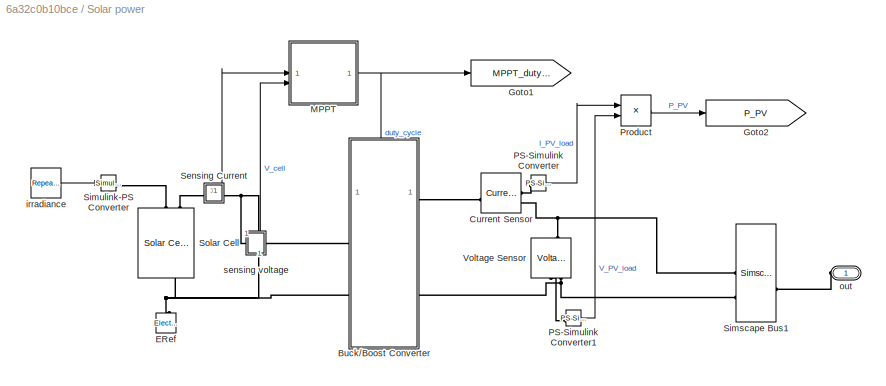
BLOCK [SubSystem] Solar power
  NameLocation = left
BLOCK [SubSystem] Solar power/Buck//Boost Converter
  PortSchema = {"entries":[{"content":{"sides":[{"content":{"connectorIds":["LConn1","LConn2"]},"type":"ConnectorPlacement.EquallySpacedRectSide","uuid":"5c021c6f-6d43-4834-8d7d-5513bb4d55a2"},{"content":{"connectorIds":["RConn1","RConn2"],"side":"RIGHT"},"type":"ConnectorPlacement.EquallySpacedRectSide","uuid":"9a583822-2cc1-49ae-b5aa-706b08d37e90"},{"content":{"connectorIds":["In1"],"side":"TOP"},"type":"Conne...<+268ch>
BLOCK [PMIOPort] Solar power/Buck//Boost Converter/+l
  Port = 4
  Side = Right
BLOCK [PMIOPort] Solar power/Buck//Boost Converter/+s
  Side = Left
BLOCK [PMIOPort] Solar power/Buck//Boost Converter/-l
  Port = 3
  Side = Right
BLOCK [PMIOPort] Solar power/Buck//Boost Converter/-s
  Port = 2
  Side = Left
BLOCK [Reference] Solar power/Buck//Boost Converter/Average-Value DC-DC Converter  REF=ee_lib/Semiconductors &
Converters/Converters/Average-Value DC-DC
Converter
  SourceBlock = ee_lib/Semiconductors &\nConverters/Converters/Average-Value DC-DC\nConverter
  SourceType = Average-Value DC-DC\nConverter
BLOCK [Reference] Solar power/Buck//Boost Converter/Simulink-PS Converter  REF=nesl_utility/Simulink-PS
Converter
  SourceBlock = nesl_utility/Simulink-PS\nConverter
  SourceType = Simulink-PS\nConverter
BLOCK [UnitDelay] Solar power/Buck//Boost Converter/Unit Delay
  HasFrameUpgradeWarning = on
  InitialCondition = 0.8
  SampleTime = -1
BLOCK [Inport] Solar power/Buck//Boost Converter/duty_cycle
BLOCK [Reference] Solar power/Current Sensor  REF=fl_lib/Electrical/Electrical Sensors/Current Sensor
  SourceBlock = fl_lib/Electrical/Electrical Sensors/Current Sensor
  SourceType = Current Sensor
BLOCK [Reference] Solar power/ERef  REF=fl_lib/Electrical/Electrical Elements/Electrical Reference
  NameLocation = right
  SourceBlock = fl_lib/Electrical/Electrical Elements/Electrical Reference
  SourceType = Electrical Reference
BLOCK [Goto] Solar power/Goto1
  GotoTag = MPPT_duty_cycle
  TagVisibility = global
BLOCK [Goto] Solar power/Goto2
  GotoTag = P_PV
  TagVisibility = global
BLOCK [SubSystem] Solar power/MPPT
BLOCK [Step] Solar power/MPPT/Enable MPPT
  NameLocation = top
  SampleTime = 0.0001
  Time = 0.1
BLOCK [Inport] Solar power/MPPT/I
BLOCK [Constant] Solar power/MPPT/Iph_
  Value = 0.8
BLOCK [Constant] Solar power/MPPT/Iph_1
  Value = 0.85
BLOCK [Constant] Solar power/MPPT/Iph_2
  Value = 0.1
BLOCK [Constant] Solar power/MPPT/Iph_3
  Value = 3e-3*0.5
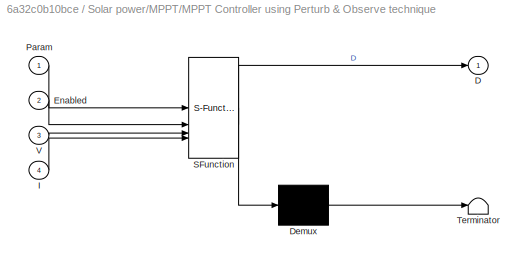
BLOCK [SubSystem] Solar power/MPPT/MPPT Controller using Perturb & Observe technique 
  ErrorFcn = Stateflow.Translate.translate
  NameLocation = top
  PermitHierarchicalResolution = ExplicitOnly
  SFBlockType = MATLAB Function
  SystemSampleTime = Ts
  TreatAsGroupedWhenPropagatingVariantConditions = off
BLOCK [Demux] Solar power/MPPT/MPPT Controller using Perturb & Observe technique / Demux 
  Outputs = 1
BLOCK [S-Function] Solar power/MPPT/MPPT Controller using Perturb & Observe technique / SFunction 
  EnableBusSupport = on
  FunctionName = sf_sfun
  PortCounts = [4 2]
  SFcnIsStateOwnerBlock = off
  SFunctionDeploymentMode = off
  Tag = Stateflow S-Function 3
BLOCK [Terminator] Solar power/MPPT/MPPT Controller using Perturb & Observe technique / Terminator 
BLOCK [Outport] Solar power/MPPT/MPPT Controller using Perturb & Observe technique /D
  VectorParamsAs1DForOutWhenUnconnected = off
BLOCK [Inport] Solar power/MPPT/MPPT Controller using Perturb & Observe technique /Enabled
  Port = 2
BLOCK [Inport] Solar power/MPPT/MPPT Controller using Perturb & Observe technique /I
  Port = 4
BLOCK [Inport] Solar power/MPPT/MPPT Controller using Perturb & Observe technique /Param
BLOCK [Inport] Solar power/MPPT/MPPT Controller using Perturb & Observe technique /V
  Port = 3
BLOCK [Mux] Solar power/MPPT/Mux
  DisplayOption = bar
BLOCK [UnitDelay] Solar power/MPPT/Unit Delay
  HasFrameUpgradeWarning = on
  InitialCondition = 0.5
  SampleTime = -1
BLOCK [Inport] Solar power/MPPT/V
  Port = 2
BLOCK [Outport] Solar power/MPPT/duty_cycle
BLOCK [Reference] Solar power/PS-Simulink Converter  REF=nesl_utility/PS-Simulink
Converter
  SourceBlock = nesl_utility/PS-Simulink\nConverter
  SourceType = PS-Simulink\nConverter
BLOCK [Reference] Solar power/PS-Simulink Converter1  REF=nesl_utility/PS-Simulink
Converter
  SourceBlock = nesl_utility/PS-Simulink\nConverter
  SourceType = PS-Simulink\nConverter
BLOCK [Product] Solar power/Product
BLOCK [SubSystem] Solar power/Sensing Current
  PortSchema = {"entries":[{"content":{"sides":[{"content":{"connectorIds":["LConn1"]},"type":"ConnectorPlacement.EquallySpacedRectSide","uuid":"08eaf192-3836-4d70-9f6a-c3aee0977ea6"},{"content":{"connectorIds":["RConn1"],"side":"RIGHT"},"type":"ConnectorPlacement.EquallySpacedRectSide","uuid":"69615d36-c1bf-4d31-b3e4-77c73286e7c7"},{"content":{"connectorIds":["Out1"],"side":"TOP"},"type":"ConnectorPlacement.Equ...<+251ch>
BLOCK [PMIOPort] Solar power/Sensing Current/+
  Side = Left
BLOCK [PMIOPort] Solar power/Sensing Current/-
  Port = 2
  Side = Right
BLOCK [Reference] Solar power/Sensing Current/Current Sensor  REF=fl_lib/Electrical/Electrical Sensors/Current Sensor
  SourceBlock = fl_lib/Electrical/Electrical Sensors/Current Sensor
  SourceType = Current Sensor
BLOCK [Outport] Solar power/Sensing Current/I
BLOCK [Reference] Solar power/Sensing Current/PS-Simulink//I  REF=nesl_utility/PS-Simulink
Converter
  SourceBlock = nesl_utility/PS-Simulink\nConverter
  SourceType = PS-Simulink\nConverter
BLOCK [SimscapeBus] Solar power/Simscape Bus1
  HierarchyStrings = High;Low
BLOCK [Reference] Solar power/Simulink-PS Converter  REF=nesl_utility/Simulink-PS
Converter
  SourceBlock = nesl_utility/Simulink-PS\nConverter
  SourceType = Simulink-PS\nConverter
BLOCK [Reference] Solar power/Solar Cell  REF=ee_lib/Sources/Solar Cell
  AttributesFormatString = Amerisolar:AS_6M30_HC_320W
  NameLocation = left
  SourceBlock = ee_lib/Sources/Solar Cell
  SourceType = Solar Cell
  Tag = {'toolbox/physmod/elec/library/m/ee_lib_parts';'Sources/Solar_Cell/Amerisolar/AS_6M30_HC_320W.xml'}
BLOCK [Reference] Solar power/Voltage Sensor  REF=fl_lib/Electrical/Electrical Sensors/Voltage Sensor
  NameLocation = right
  SourceBlock = fl_lib/Electrical/Electrical Sensors/Voltage Sensor
  SourceType = Voltage Sensor
BLOCK [Reference] Solar power/irradiance   REF=simulink/Sources/Repeating
Sequence
Interpolated
  NameLocation = top
  SourceBlock = simulink/Sources/Repeating\nSequence\nInterpolated
  SourceType = Repeating Sequence Interpolated
BLOCK [PMIOPort] Solar power/out
  NameLocation = top
  Side = Left
BLOCK [SubSystem] Solar power/sensing voltage
  NameLocation = left
  PortSchema = {"entries":[{"content":{"sides":[{"content":{"connectorIds":["LConn1"]},"type":"ConnectorPlacement.EquallySpacedRectSide","uuid":"08eaf192-3836-4d70-9f6a-c3aee0977ea6"},{"content":{"connectorIds":["RConn1"],"side":"RIGHT"},"type":"ConnectorPlacement.EquallySpacedRectSide","uuid":"69615d36-c1bf-4d31-b3e4-77c73286e7c7"},{"content":{"connectorIds":[],"side":"TOP"},"type":"ConnectorPlacement.EquallySp...<+395ch>
BLOCK [PMIOPort] Solar power/sensing voltage/+
  NameLocation = left
  Side = Left
BLOCK [PMIOPort] Solar power/sensing voltage/-
  NameLocation = left
  Port = 2
  Side = Right
BLOCK [Reference] Solar power/sensing voltage/PS-Simulink Converter  REF=nesl_utility/PS-Simulink
Converter
  SourceBlock = nesl_utility/PS-Simulink\nConverter
  SourceType = PS-Simulink\nConverter
BLOCK [Outport] Solar power/sensing voltage/V
BLOCK [Reference] Solar power/sensing voltage/Voltage Sensor  REF=fl_lib/Electrical/Electrical Sensors/Voltage Sensor
  NameLocation = right
  SourceBlock = fl_lib/Electrical/Electrical Sensors/Voltage Sensor
  SourceType = Voltage Sensor
BLOCK [SubSystem] Subsystem10
  NameLocation = right
BLOCK [PMIOPort] Subsystem10/In
  Side = Left
BLOCK [PMIOPort] Subsystem10/Out
  Port = 2
  Side = Right
BLOCK [Reference] Subsystem10/Resistor  REF=fl_lib/Electrical/Electrical Elements/Resistor
  SourceBlock = fl_lib/Electrical/Electrical Elements/Resistor
  SourceType = Resistor
BLOCK [Reference] Subsystem10/Resistor1  REF=fl_lib/Electrical/Electrical Elements/Resistor
  SourceBlock = fl_lib/Electrical/Electrical Elements/Resistor
  SourceType = Resistor
BLOCK [SimscapeBus] Subsystem10/Simscape Bus2
  HierarchyStrings = High;Low
  NameLocation = top
BLOCK [SimscapeBus] Subsystem10/Simscape Bus3
  HierarchyStrings = High;Low
BLOCK [SubSystem] Wind energy
BLOCK [Reference] Wind energy/Controlled Current Source  REF=fl_lib/Electrical/Electrical Sources/Controlled Current
Source
  NameLocation = right
  SourceBlock = fl_lib/Electrical/Electrical Sources/Controlled Current\nSource
  SourceType = Controlled Current\nSource
BLOCK [Reference] Wind energy/Current Sensor  REF=fl_lib/Electrical/Electrical Sensors/Current Sensor
  SourceBlock = fl_lib/Electrical/Electrical Sensors/Current Sensor
  SourceType = Current Sensor
BLOCK [Reference] Wind energy/Electrical Reference  REF=fl_lib/Electrical/Electrical Elements/Electrical Reference
  NameLocation = right
  SourceBlock = fl_lib/Electrical/Electrical Elements/Electrical Reference
  SourceType = Electrical Reference
BLOCK [Reference] Wind energy/PS Divide  REF=fl_lib/Physical Signals/Functions/PS Divide
  SourceBlock = fl_lib/Physical Signals/Functions/PS Divide
  SourceType = PS Divide
BLOCK [Reference] Wind energy/PS Product  REF=fl_lib/Physical Signals/Functions/PS Product
  SourceBlock = fl_lib/Physical Signals/Functions/PS Product
  SourceType = PS Product
BLOCK [Reference] Wind energy/PS-Simulink Converter  REF=nesl_utility/PS-Simulink
Converter
  SourceBlock = nesl_utility/PS-Simulink\nConverter
  SourceType = PS-Simulink\nConverter
BLOCK [SimscapeBus] Wind energy/Simscape Bus1
  HierarchyStrings = High;Low
BLOCK [Reference] Wind energy/Simulink-PS Converter  REF=nesl_utility/Simulink-PS
Converter
  SourceBlock = nesl_utility/Simulink-PS\nConverter
  SourceType = Simulink-PS\nConverter
BLOCK [Reference] Wind energy/Solver Configuration  REF=nesl_utility/Solver
Configuration
  NameLocation = top
  SourceBlock = nesl_utility/Solver\nConfiguration
  SourceType = Solver\nConfiguration
BLOCK [SubSystem] Wind energy/Subsystem
BLOCK [Outport] Wind energy/Subsystem/Acitve power
BLOCK [MATLABSystem] Wind energy/Subsystem/MATLAB System
  MaskDisplay = disp('windturbine_pitch_control');\nport_label('input',1,'P_mechanic');\nport_label('output',1,'P');
  MaskType = windturbine_pitch_control
  SimulateUsing = Code generation
  System = windturbine_pitch_control
  Ts = 0.01
  inertia_dynamicsTimeConstant = 3
  turbine_Pinst = 1e6
  turbine_dynamicsTimeConstant = 5
BLOCK [Scope] Wind energy/Subsystem/Scope
  Floating = off
  NumInputPorts = 2
  ScopeSpecificationString = Simulink.scopes.TimeScopeBlockCfg('CurrentConfiguration', extmgr.ConfigurationSet(extmgr.Configuration('Core','General UI',true),extmgr.Configuration('Core','Source UI',true),extmgr.Configuration('Sources','WiredSimulink',true),extmgr.Configuration('Visuals','Time Domain',true,'SerializedDisplays',{struct('MinYLimReal','-133306.47206','MaxYLimReal','1199768.9132','YLabelReal','','MinYLimMag','    ...<+1536ch>
BLOCK [Inport] Wind energy/Subsystem/Wind speed
BLOCK [SubSystem] Wind energy/Subsystem/Wind turbine
BLOCK [Constant] Wind energy/Subsystem/Wind turbine/Blade radius
  Value = R
BLOCK [Constant] Wind energy/Subsystem/Wind turbine/Constant
  Value = 1.225
BLOCK [Gain] Wind energy/Subsystem/Wind turbine/Multiply
  Gain = 1/2
BLOCK [Gain] Wind energy/Subsystem/Wind turbine/Multiply1
  Gain = pi
BLOCK [Product] Wind energy/Subsystem/Wind turbine/Product
  Inputs = 4
BLOCK [Math] Wind energy/Subsystem/Wind turbine/Square
  Operator = square
BLOCK [SubSystem] Wind energy/Subsystem/Wind turbine/Subsystem
BLOCK [Inport] Wind energy/Subsystem/Wind turbine/Subsystem/In1
BLOCK [Outport] Wind energy/Subsystem/Wind turbine/Subsystem/Out1
BLOCK [Math] Wind energy/Subsystem/Wind turbine/Subsystem/Square1
  Operator = pow
BLOCK [Constant] Wind energy/Subsystem/Wind turbine/Subsystem/power of 3
  Value = 3
BLOCK [SubSystem] Wind energy/Subsystem/Wind turbine/Subsystem1
BLOCK [Constant] Wind energy/Subsystem/Wind turbine/Subsystem1/Constant1
  Value = theta
BLOCK [Constant] Wind energy/Subsystem/Wind turbine/Subsystem1/Constant2
  Value = C5
BLOCK [Outport] Wind energy/Subsystem/Wind turbine/Subsystem1/Cp
BLOCK [Sum] Wind energy/Subsystem/Wind turbine/Subsystem1/Minus
  IconShape = rectangular
  Inputs = +--
BLOCK [Gain] Wind energy/Subsystem/Wind turbine/Subsystem1/Multiply2
  Gain = C2
BLOCK [Gain] Wind energy/Subsystem/Wind turbine/Subsystem1/Multiply3
  Gain = C3
BLOCK [Gain] Wind energy/Subsystem/Wind turbine/Subsystem1/Multiply4
  Gain = C1
BLOCK [Gain] Wind energy/Subsystem/Wind turbine/Subsystem1/Multiply5
  Gain = -C6
BLOCK [Product] Wind energy/Subsystem/Wind turbine/Subsystem1/Product1
BLOCK [SubSystem] Wind energy/Subsystem/Wind turbine/Subsystem1/Subsystem
BLOCK [Outport] Wind energy/Subsystem/Wind turbine/Subsystem1/Subsystem/1//beta
BLOCK [Constant] Wind energy/Subsystem/Wind turbine/Subsystem1/Subsystem/Constant
  Value = theta
BLOCK [SubSystem] Wind energy/Subsystem/Wind turbine/Subsystem1/Subsystem/MATLAB Function
  ErrorFcn = Stateflow.Translate.translate
  PermitHierarchicalResolution = ExplicitOnly
  SFBlockType = MATLAB Function
  TreatAsAtomicUnit = on
BLOCK [Demux] Wind energy/Subsystem/Wind turbine/Subsystem1/Subsystem/MATLAB Function/ Demux 
  Outputs = 1
BLOCK [S-Function] Wind energy/Subsystem/Wind turbine/Subsystem1/Subsystem/MATLAB Function/ SFunction 
  EnableBusSupport = on
  FunctionName = sf_sfun
  PortCounts = [2 2]
  SFcnIsStateOwnerBlock = off
  SFunctionDeploymentMode = off
  Tag = Stateflow S-Function 1
BLOCK [Terminator] Wind energy/Subsystem/Wind turbine/Subsystem1/Subsystem/MATLAB Function/ Terminator 
BLOCK [Outport] Wind energy/Subsystem/Wind turbine/Subsystem1/Subsystem/MATLAB Function/beta
  VectorParamsAs1DForOutWhenUnconnected = off
BLOCK [Inport] Wind energy/Subsystem/Wind turbine/Subsystem1/Subsystem/MATLAB Function/lambda
BLOCK [Inport] Wind energy/Subsystem/Wind turbine/Subsystem1/Subsystem/MATLAB Function/theta
  Port = 2
BLOCK [Math] Wind energy/Subsystem/Wind turbine/Subsystem1/Subsystem/Math Reciprocal
  Operator = reciprocal
  SignedPower = on
BLOCK [Gain] Wind energy/Subsystem/Wind turbine/Subsystem1/Subsystem/Multiply
  Gain = R
BLOCK [Gain] Wind energy/Subsystem/Wind turbine/Subsystem1/Subsystem/Multiply2
  Gain = W
BLOCK [Inport] Wind energy/Subsystem/Wind turbine/Subsystem1/Subsystem/Vw
BLOCK [Inport] Wind energy/Subsystem/Wind turbine/Subsystem1/Vw
BLOCK [Math] Wind energy/Subsystem/Wind turbine/Subsystem1/exp
BLOCK [Inport] Wind energy/Subsystem/Wind turbine/Vw wind speed
BLOCK [Outport] Wind energy/Subsystem/Wind turbine/Wind power
BLOCK [Terminator] Wind energy/Terminator
BLOCK [Reference] Wind energy/Voltage Sensor  REF=fl_lib/Electrical/Electrical Sensors/Voltage Sensor
  NameLocation = right
  SourceBlock = fl_lib/Electrical/Electrical Sensors/Voltage Sensor
  SourceType = Voltage Sensor
BLOCK [Inport] Wind energy/Wind speed
BLOCK [PMIOPort] Wind energy/WindOut
  Side = Right
ANNOTATION (root): DC BUS: 48V
ANNOTATION (root): DC BUS:380V
ANNOTATION Solar power/MPPT: Increment value used to increase/decrease (DeltaD)
ANNOTATION Solar power/MPPT: Initial value for D output (Dinit)
ANNOTATION Solar power/MPPT: Lower limit for D (Dmin)
ANNOTATION Solar power/MPPT: Upper limit for D (Dmax)
LINE Before t,high resistance/Clock1:1 -> Before t,high resistance/MATLAB Function1:1
LINE Before t,high resistance/Constant2:1 -> Before t,high resistance/MATLAB Function1:2
LINE Before t,high resistance/MATLAB Function1:1 -> Before t,high resistance/Simulink-PS Converter2:1
LINE Before t,high resistance/Simscape2/PS-S:1 -> Before t,high resistance/Simscape2/Goto:1
LINE Constant:1 -> Wind energy:1
LINE Factory1/Industrial power :1 -> Factory1/Simulink-PS Converter1:1
LINE Factory1/PS-Simulink Converter1:1 -> Factory1/Product:1
LINE Factory1/PS-Simulink Converter:1 -> Factory1/Product:2
LINE Factory1/Product:1 -> Factory1/Terminator:1
LINE Factory2/Industrial power :1 -> Factory2/Simulink-PS Converter1:1
LINE Factory2/PS-Simulink Converter1:1 -> Factory2/Product:1
LINE Factory2/PS-Simulink Converter:1 -> Factory2/Product:2
LINE Factory2/Product:1 -> Factory2/Terminator:1
LINE Factory3/Industrial power :1 -> Factory3/Simulink-PS Converter1:1
LINE Factory3/PS-Simulink Converter1:1 -> Factory3/Product:1
LINE Factory3/PS-Simulink Converter:1 -> Factory3/Product:2
LINE Factory3/Product:1 -> Factory3/Terminator:1
LINE Household 1/PS-Simulink Converter1:1 -> Household 1/Product:1
LINE Household 1/PS-Simulink Converter:1 -> Household 1/Product:2
LINE Household 1/Product:1 -> Household 1/Terminator:1
LINE Household 1/Residential power :1 -> Household 1/Simulink-PS Converter:1
LINE Household 10/PS-Simulink Converter1:1 -> Household 10/Product:1
LINE Household 10/PS-Simulink Converter:1 -> Household 10/Product:2
LINE Household 10/Product:1 -> Household 10/Terminator:1
LINE Household 10/Residential power :1 -> Household 10/Simulink-PS Converter:1
LINE Household 2/PS-Simulink Converter1:1 -> Household 2/Product:1
LINE Household 2/PS-Simulink Converter:1 -> Household 2/Product:2
LINE Household 2/Product:1 -> Household 2/Terminator:1
LINE Household 2/Residential power :1 -> Household 2/Simulink-PS Converter:1
LINE Household 3/PS-Simulink Converter1:1 -> Household 3/Product:1
LINE Household 3/PS-Simulink Converter:1 -> Household 3/Product:2
LINE Household 3/Product:1 -> Household 3/Terminator:1
LINE Household 3/Residential power :1 -> Household 3/Simulink-PS Converter:1
LINE Household 4/PS-Simulink Converter1:1 -> Household 4/Product:1
LINE Household 4/PS-Simulink Converter:1 -> Household 4/Product:2
LINE Household 4/Product:1 -> Household 4/Terminator:1
LINE Household 4/Residential power :1 -> Household 4/Simulink-PS Converter:1
LINE Household 5/PS-Simulink Converter1:1 -> Household 5/Product:1
LINE Household 5/PS-Simulink Converter:1 -> Household 5/Product:2
LINE Household 5/Product:1 -> Household 5/Terminator:1
LINE Household 5/Residential power :1 -> Household 5/Simulink-PS Converter:1
LINE Household 6/PS-Simulink Converter1:1 -> Household 6/Product:1
LINE Household 6/PS-Simulink Converter:1 -> Household 6/Product:2
LINE Household 6/Product:1 -> Household 6/Terminator:1
LINE Household 6/Residential power :1 -> Household 6/Simulink-PS Converter:1
LINE Household 7/PS-Simulink Converter1:1 -> Household 7/Product:1
LINE Household 7/PS-Simulink Converter:1 -> Household 7/Product:2
LINE Household 7/Product:1 -> Household 7/Terminator:1
LINE Household 7/Residential power :1 -> Household 7/Simulink-PS Converter:1
LINE Household 8/PS-Simulink Converter1:1 -> Household 8/Product:1
LINE Household 8/PS-Simulink Converter:1 -> Household 8/Product:2
LINE Household 8/Product:1 -> Household 8/Terminator:1
LINE Household 8/Residential power :1 -> Household 8/Simulink-PS Converter:1
LINE Household 9/PS-Simulink Converter1:1 -> Household 9/Product:1
LINE Household 9/PS-Simulink Converter:1 -> Household 9/Product:2
LINE Household 9/Product:1 -> Household 9/Terminator:1
LINE Household 9/Residential power :1 -> Household 9/Simulink-PS Converter:1
LINE Solar power/Buck//Boost Converter/Unit Delay:1 -> Solar power/Buck//Boost Converter/Simulink-PS Converter:1
LINE Solar power/Buck//Boost Converter/duty_cycle:1 -> Solar power/Buck//Boost Converter/Unit Delay:1
LINE Solar power/MPPT/Enable MPPT:1 -> Solar power/MPPT/MPPT Controller using Perturb & Observe technique :2
LINE Solar power/MPPT/I:1 -> Solar power/MPPT/MPPT Controller using Perturb & Observe technique :4
LINE Solar power/MPPT/Iph_1:1 -> Solar power/MPPT/Mux:2
LINE Solar power/MPPT/Iph_2:1 -> Solar power/MPPT/Mux:3
LINE Solar power/MPPT/Iph_3:1 -> Solar power/MPPT/Mux:4
LINE Solar power/MPPT/Iph_:1 -> Solar power/MPPT/Mux:1
LINE Solar power/MPPT/MPPT Controller using Perturb & Observe technique :1 -> Solar power/MPPT/Unit Delay:1
LINE Solar power/MPPT/Mux:1 -> Solar power/MPPT/MPPT Controller using Perturb & Observe technique :1
LINE Solar power/MPPT/Unit Delay:1 -> Solar power/MPPT/duty_cycle:1
LINE Solar power/MPPT/V:1 -> Solar power/MPPT/MPPT Controller using Perturb & Observe technique :3
NET Solar power/MPPT:1 -> Solar power/Buck//Boost Converter:1, Solar power/Goto1:1
LINE Solar power/PS-Simulink Converter1:1 -> Solar power/Product:2
LINE Solar power/PS-Simulink Converter:1 -> Solar power/Product:1
LINE Solar power/Product:1 -> Solar power/Goto2:1
LINE Solar power/Sensing Current/PS-Simulink//I:1 -> Solar power/Sensing Current/I:1
LINE Solar power/Sensing Current:1 -> Solar power/MPPT:1
LINE Solar power/irradiance :1 -> Solar power/Simulink-PS Converter:1
LINE Solar power/sensing voltage/PS-Simulink Converter:1 -> Solar power/sensing voltage/V:1
LINE Solar power/sensing voltage:1 -> Solar power/MPPT:2
LINE Wind energy/PS-Simulink Converter:1 -> Wind energy/Terminator:1
NET Wind energy/Subsystem/MATLAB System:1 -> Wind energy/Subsystem/Acitve power:1, Wind energy/Subsystem/Scope:2
LINE Wind energy/Subsystem/Wind speed:1 -> Wind energy/Subsystem/Wind turbine:1
LINE Wind energy/Subsystem/Wind turbine/Blade radius:1 -> Wind energy/Subsystem/Wind turbine/Square:1
LINE Wind energy/Subsystem/Wind turbine/Constant:1 -> Wind energy/Subsystem/Wind turbine/Product:1
LINE Wind energy/Subsystem/Wind turbine/Multiply1:1 -> Wind energy/Subsystem/Wind turbine/Product:2
LINE Wind energy/Subsystem/Wind turbine/Multiply:1 -> Wind energy/Subsystem/Wind turbine/Wind power:1
LINE Wind energy/Subsystem/Wind turbine/Product:1 -> Wind energy/Subsystem/Wind turbine/Multiply:1
LINE Wind energy/Subsystem/Wind turbine/Square:1 -> Wind energy/Subsystem/Wind turbine/Multiply1:1
LINE Wind energy/Subsystem/Wind turbine/Subsystem/In1:1 -> Wind energy/Subsystem/Wind turbine/Subsystem/Square1:1
LINE Wind energy/Subsystem/Wind turbine/Subsystem/Square1:1 -> Wind energy/Subsystem/Wind turbine/Subsystem/Out1:1
LINE Wind energy/Subsystem/Wind turbine/Subsystem/power of 3:1 -> Wind energy/Subsystem/Wind turbine/Subsystem/Square1:2
LINE Wind energy/Subsystem/Wind turbine/Subsystem1/Constant1:1 -> Wind energy/Subsystem/Wind turbine/Subsystem1/Multiply3:1
LINE Wind energy/Subsystem/Wind turbine/Subsystem1/Constant2:1 -> Wind energy/Subsystem/Wind turbine/Subsystem1/Minus:3
LINE Wind energy/Subsystem/Wind turbine/Subsystem1/Minus:1 -> Wind energy/Subsystem/Wind turbine/Subsystem1/Multiply4:1
LINE Wind energy/Subsystem/Wind turbine/Subsystem1/Multiply2:1 -> Wind energy/Subsystem/Wind turbine/Subsystem1/Minus:1
LINE Wind energy/Subsystem/Wind turbine/Subsystem1/Multiply3:1 -> Wind energy/Subsystem/Wind turbine/Subsystem1/Minus:2
LINE Wind energy/Subsystem/Wind turbine/Subsystem1/Multiply4:1 -> Wind energy/Subsystem/Wind turbine/Subsystem1/Product1:1
LINE Wind energy/Subsystem/Wind turbine/Subsystem1/Multiply5:1 -> Wind energy/Subsystem/Wind turbine/Subsystem1/exp:1
LINE Wind energy/Subsystem/Wind turbine/Subsystem1/Product1:1 -> Wind energy/Subsystem/Wind turbine/Subsystem1/Cp:1
LINE Wind energy/Subsystem/Wind turbine/Subsystem1/Subsystem/Constant:1 -> Wind energy/Subsystem/Wind turbine/Subsystem1/Subsystem/MATLAB Function:2
LINE Wind energy/Subsystem/Wind turbine/Subsystem1/Subsystem/MATLAB Function:1 -> Wind energy/Subsystem/Wind turbine/Subsystem1/Subsystem/1//beta:1
LINE Wind energy/Subsystem/Wind turbine/Subsystem1/Subsystem/Math Reciprocal:1 -> Wind energy/Subsystem/Wind turbine/Subsystem1/Subsystem/Multiply2:1
LINE Wind energy/Subsystem/Wind turbine/Subsystem1/Subsystem/Multiply2:1 -> Wind energy/Subsystem/Wind turbine/Subsystem1/Subsystem/Multiply:1
LINE Wind energy/Subsystem/Wind turbine/Subsystem1/Subsystem/Multiply:1 -> Wind energy/Subsystem/Wind turbine/Subsystem1/Subsystem/MATLAB Function:1
LINE Wind energy/Subsystem/Wind turbine/Subsystem1/Subsystem/Vw:1 -> Wind energy/Subsystem/Wind turbine/Subsystem1/Subsystem/Math Reciprocal:1
NET Wind energy/Subsystem/Wind turbine/Subsystem1/Subsystem:1 -> Wind energy/Subsystem/Wind turbine/Subsystem1/Multiply2:1, Wind energy/Subsystem/Wind turbine/Subsystem1/Multiply5:1
LINE Wind energy/Subsystem/Wind turbine/Subsystem1/Vw:1 -> Wind energy/Subsystem/Wind turbine/Subsystem1/Subsystem:1
LINE Wind energy/Subsystem/Wind turbine/Subsystem1/exp:1 -> Wind energy/Subsystem/Wind turbine/Subsystem1/Product1:2
LINE Wind energy/Subsystem/Wind turbine/Subsystem1:1 -> Wind energy/Subsystem/Wind turbine/Product:4
LINE Wind energy/Subsystem/Wind turbine/Subsystem:1 -> Wind energy/Subsystem/Wind turbine/Product:3
NET Wind energy/Subsystem/Wind turbine/Vw wind speed:1 -> Wind energy/Subsystem/Wind turbine/Subsystem1:1, Wind energy/Subsystem/Wind turbine/Subsystem:1
NET Wind energy/Subsystem/Wind turbine:1 -> Wind energy/Subsystem/MATLAB System:1, Wind energy/Subsystem/Scope:1
LINE Wind energy/Subsystem:1 -> Wind energy/Simulink-PS Converter:1
LINE Wind energy/Wind speed:1 -> Wind energy/Subsystem:1
PLINE Before t,high resistance/Simscape Bus1:LConn1 -- Before t,high resistance/Variable Resistor1:LConn2
PLINE Before t,high resistance/Simscape Bus1:LConn2 -- Before t,high resistance/Variable Resistor2:LConn2
PLINE Before t,high resistance/Simscape Bus1:RConn1 -- Before t,high resistance/in:RConn1
PLINE Before t,high resistance/Simscape Bus4:LConn1 -- Before t,high resistance/Simscape2:LConn2
PLINE Before t,high resistance/Simscape Bus4:LConn2 -- Before t,high resistance/Variable Resistor2:RConn1
PLINE Before t,high resistance/Simscape Bus4:RConn1 -- Before t,high resistance/out:RConn1
PLINE Before t,high resistance/Simscape2/+:RConn1 -- Before t,high resistance/Simscape2/Current Sensor:LConn1
PLINE Before t,high resistance/Simscape2/-:RConn1 -- Before t,high resistance/Simscape2/Current Sensor:RConn2
PLINE Before t,high resistance/Simscape2/Current Sensor:RConn1 -- Before t,high resistance/Simscape2/PS-S:LConn1
PLINE Before t,high resistance/Simscape2:LConn1 -- Before t,high resistance/Variable Resistor1:RConn1
PNET net1: Before t,high resistance/Simulink-PS Converter2:RConn1 -- Before t,high resistance/Variable Resistor1:LConn1 -- Before t,high resistance/Variable Resistor2:LConn1
PNET net2: Before t,high resistance:LConn1 -- Line16:LConn1 -- Line17:LConn1 -- Line18:LConn1 -- Line19:RConn1
PNET net3: Before t,high resistance:RConn1 -- Line13:LConn1 -- Line14:LConn1 -- Line15:LConn1 -- Line20:LConn1 -- Line2:RConn1 -- Subsystem10:RConn1
PLINE Factory1/Current Sensor:LConn1 -- Factory1/Simscape Bus1:LConn1
PLINE Factory1/Current Sensor:RConn1 -- Factory1/PS-Simulink Converter1:LConn1
PNET net4: Factory1/Current Sensor:RConn2 -- Factory1/Variable Resistor:LConn2 -- Factory1/Voltage Sensor:LConn1
PLINE Factory1/IndustrialOut:RConn1 -- Factory1/Simscape Bus1:RConn1
PLINE Factory1/PS Divide:LConn1 -- Factory1/PS Product:RConn1
PLINE Factory1/PS Divide:LConn2 -- Factory1/Simulink-PS Converter1:RConn1
PLINE Factory1/PS Divide:RConn1 -- Factory1/Variable Resistor:LConn1
PNET net5: Factory1/PS Product:LConn1 -- Factory1/PS Product:LConn2 -- Factory1/Vnom:RConn1
PLINE Factory1/PS-Simulink Converter:LConn1 -- Factory1/Voltage Sensor:RConn1
PNET net6: Factory1/Simscape Bus1:LConn2 -- Factory1/Variable Resistor:RConn1 -- Factory1/Voltage Sensor:RConn2
PLINE Factory1:RConn1 -- Line13:RConn1
PLINE Factory2/Current Sensor:LConn1 -- Factory2/Simscape Bus1:LConn1
PLINE Factory2/Current Sensor:RConn1 -- Factory2/PS-Simulink Converter1:LConn1
PNET net7: Factory2/Current Sensor:RConn2 -- Factory2/Variable Resistor:LConn2 -- Factory2/Voltage Sensor:LConn1
PLINE Factory2/IndustrialOut:RConn1 -- Factory2/Simscape Bus1:RConn1
PLINE Factory2/PS Divide:LConn1 -- Factory2/PS Product:RConn1
PLINE Factory2/PS Divide:LConn2 -- Factory2/Simulink-PS Converter1:RConn1
PLINE Factory2/PS Divide:RConn1 -- Factory2/Variable Resistor:LConn1
PNET net8: Factory2/PS Product:LConn1 -- Factory2/PS Product:LConn2 -- Factory2/Vnom:RConn1
PLINE Factory2/PS-Simulink Converter:LConn1 -- Factory2/Voltage Sensor:RConn1
PNET net9: Factory2/Simscape Bus1:LConn2 -- Factory2/Variable Resistor:RConn1 -- Factory2/Voltage Sensor:RConn2
PLINE Factory2:RConn1 -- Line14:RConn1
PLINE Factory3/Current Sensor:LConn1 -- Factory3/Simscape Bus1:LConn1
PLINE Factory3/Current Sensor:RConn1 -- Factory3/PS-Simulink Converter1:LConn1
PNET net10: Factory3/Current Sensor:RConn2 -- Factory3/Variable Resistor:LConn2 -- Factory3/Voltage Sensor:LConn1
PLINE Factory3/IndustrialOut:RConn1 -- Factory3/Simscape Bus1:RConn1
PLINE Factory3/PS Divide:LConn1 -- Factory3/PS Product:RConn1
PLINE Factory3/PS Divide:LConn2 -- Factory3/Simulink-PS Converter1:RConn1
PLINE Factory3/PS Divide:RConn1 -- Factory3/Variable Resistor:LConn1
PNET net11: Factory3/PS Product:LConn1 -- Factory3/PS Product:LConn2 -- Factory3/Vnom:RConn1
PLINE Factory3/PS-Simulink Converter:LConn1 -- Factory3/Voltage Sensor:RConn1
PNET net12: Factory3/Simscape Bus1:LConn2 -- Factory3/Variable Resistor:RConn1 -- Factory3/Voltage Sensor:RConn2
PLINE Factory3:RConn1 -- Line15:RConn1
PLINE Household 1/Current Sensor:LConn1 -- Household 1/Simscape Bus1:LConn1
PLINE Household 1/Current Sensor:RConn1 -- Household 1/PS-Simulink Converter1:LConn1
PNET net13: Household 1/Current Sensor:RConn2 -- Household 1/Simscape Component:LConn2 -- Household 1/Voltage Sensor:LConn1
PLINE Household 1/PS-Simulink Converter:LConn1 -- Household 1/Voltage Sensor:RConn1
PLINE Household 1/ResidentialOut:RConn1 -- Household 1/Simscape Bus1:RConn1
PNET net14: Household 1/Simscape Bus1:LConn2 -- Household 1/Simscape Component:RConn1 -- Household 1/Voltage Sensor:RConn2
PLINE Household 1/Simscape Component:LConn1 -- Household 1/Simulink-PS Converter:RConn1
PLINE Household 10/Current Sensor:LConn1 -- Household 10/Simscape Bus1:LConn1
PLINE Household 10/Current Sensor:RConn1 -- Household 10/PS-Simulink Converter1:LConn1
PNET net15: Household 10/Current Sensor:RConn2 -- Household 10/Simscape Component:LConn2 -- Household 10/Voltage Sensor:LConn1
PLINE Household 10/PS-Simulink Converter:LConn1 -- Household 10/Voltage Sensor:RConn1
PLINE Household 10/ResidentialOut:RConn1 -- Household 10/Simscape Bus1:RConn1
PNET net16: Household 10/Simscape Bus1:LConn2 -- Household 10/Simscape Component:RConn1 -- Household 10/Voltage Sensor:RConn2
PLINE Household 10/Simscape Component:LConn1 -- Household 10/Simulink-PS Converter:RConn1
PLINE Household 10:RConn1 -- Line20:RConn1
PLINE Household 1:RConn1 -- Line5:RConn1
PLINE Household 2/Current Sensor:LConn1 -- Household 2/Simscape Bus1:LConn1
PLINE Household 2/Current Sensor:RConn1 -- Household 2/PS-Simulink Converter1:LConn1
PNET net17: Household 2/Current Sensor:RConn2 -- Household 2/Simscape Component:LConn2 -- Household 2/Voltage Sensor:LConn1
PLINE Household 2/PS-Simulink Converter:LConn1 -- Household 2/Voltage Sensor:RConn1
PLINE Household 2/ResidentialOut:RConn1 -- Household 2/Simscape Bus1:RConn1
PNET net18: Household 2/Simscape Bus1:LConn2 -- Household 2/Simscape Component:RConn1 -- Household 2/Voltage Sensor:RConn2
PLINE Household 2/Simscape Component:LConn1 -- Household 2/Simulink-PS Converter:RConn1
PLINE Household 2:RConn1 -- Line6:LConn1
PLINE Household 3/Current Sensor:LConn1 -- Household 3/Simscape Bus1:LConn1
PLINE Household 3/Current Sensor:RConn1 -- Household 3/PS-Simulink Converter1:LConn1
PNET net19: Household 3/Current Sensor:RConn2 -- Household 3/Simscape Component:LConn2 -- Household 3/Voltage Sensor:LConn1
PLINE Household 3/PS-Simulink Converter:LConn1 -- Household 3/Voltage Sensor:RConn1
PLINE Household 3/ResidentialOut:RConn1 -- Household 3/Simscape Bus1:RConn1
PNET net20: Household 3/Simscape Bus1:LConn2 -- Household 3/Simscape Component:RConn1 -- Household 3/Voltage Sensor:RConn2
PLINE Household 3/Simscape Component:LConn1 -- Household 3/Simulink-PS Converter:RConn1
PLINE Household 3:RConn1 -- Line7:RConn1
PLINE Household 4/Current Sensor:LConn1 -- Household 4/Simscape Bus1:LConn1
PLINE Household 4/Current Sensor:RConn1 -- Household 4/PS-Simulink Converter1:LConn1
PNET net21: Household 4/Current Sensor:RConn2 -- Household 4/Simscape Component:LConn2 -- Household 4/Voltage Sensor:LConn1
PLINE Household 4/PS-Simulink Converter:LConn1 -- Household 4/Voltage Sensor:RConn1
PLINE Household 4/ResidentialOut:RConn1 -- Household 4/Simscape Bus1:RConn1
PNET net22: Household 4/Simscape Bus1:LConn2 -- Household 4/Simscape Component:RConn1 -- Household 4/Voltage Sensor:RConn2
PLINE Household 4/Simscape Component:LConn1 -- Household 4/Simulink-PS Converter:RConn1
PLINE Household 4:RConn1 -- Line9:RConn1
PLINE Household 5/Current Sensor:LConn1 -- Household 5/Simscape Bus1:LConn1
PLINE Household 5/Current Sensor:RConn1 -- Household 5/PS-Simulink Converter1:LConn1
PNET net23: Household 5/Current Sensor:RConn2 -- Household 5/Simscape Component:LConn2 -- Household 5/Voltage Sensor:LConn1
PLINE Household 5/PS-Simulink Converter:LConn1 -- Household 5/Voltage Sensor:RConn1
PLINE Household 5/ResidentialOut:RConn1 -- Household 5/Simscape Bus1:RConn1
PNET net24: Household 5/Simscape Bus1:LConn2 -- Household 5/Simscape Component:RConn1 -- Household 5/Voltage Sensor:RConn2
PLINE Household 5/Simscape Component:LConn1 -- Household 5/Simulink-PS Converter:RConn1
PLINE Household 5:RConn1 -- Line10:LConn1
PLINE Household 6/Current Sensor:LConn1 -- Household 6/Simscape Bus1:LConn1
PLINE Household 6/Current Sensor:RConn1 -- Household 6/PS-Simulink Converter1:LConn1
PNET net25: Household 6/Current Sensor:RConn2 -- Household 6/Simscape Component:LConn2 -- Household 6/Voltage Sensor:LConn1
PLINE Household 6/PS-Simulink Converter:LConn1 -- Household 6/Voltage Sensor:RConn1
PLINE Household 6/ResidentialOut:RConn1 -- Household 6/Simscape Bus1:RConn1
PNET net26: Household 6/Simscape Bus1:LConn2 -- Household 6/Simscape Component:RConn1 -- Household 6/Voltage Sensor:RConn2
PLINE Household 6/Simscape Component:LConn1 -- Household 6/Simulink-PS Converter:RConn1
PLINE Household 6:RConn1 -- Line11:RConn1
PLINE Household 7/Current Sensor:LConn1 -- Household 7/Simscape Bus1:LConn1
PLINE Household 7/Current Sensor:RConn1 -- Household 7/PS-Simulink Converter1:LConn1
PNET net27: Household 7/Current Sensor:RConn2 -- Household 7/Simscape Component:LConn2 -- Household 7/Voltage Sensor:LConn1
PLINE Household 7/PS-Simulink Converter:LConn1 -- Household 7/Voltage Sensor:RConn1
PLINE Household 7/ResidentialOut:RConn1 -- Household 7/Simscape Bus1:RConn1
PNET net28: Household 7/Simscape Bus1:LConn2 -- Household 7/Simscape Component:RConn1 -- Household 7/Voltage Sensor:RConn2
PLINE Household 7/Simscape Component:LConn1 -- Household 7/Simulink-PS Converter:RConn1
PLINE Household 7:RConn1 -- Line18:RConn1
PLINE Household 8/Current Sensor:LConn1 -- Household 8/Simscape Bus1:LConn1
PLINE Household 8/Current Sensor:RConn1 -- Household 8/PS-Simulink Converter1:LConn1
PNET net29: Household 8/Current Sensor:RConn2 -- Household 8/Simscape Component:LConn2 -- Household 8/Voltage Sensor:LConn1
PLINE Household 8/PS-Simulink Converter:LConn1 -- Household 8/Voltage Sensor:RConn1
PLINE Household 8/ResidentialOut:RConn1 -- Household 8/Simscape Bus1:RConn1
PNET net30: Household 8/Simscape Bus1:LConn2 -- Household 8/Simscape Component:RConn1 -- Household 8/Voltage Sensor:RConn2
PLINE Household 8/Simscape Component:LConn1 -- Household 8/Simulink-PS Converter:RConn1
PLINE Household 8:RConn1 -- Line16:RConn1
PLINE Household 9/Current Sensor:LConn1 -- Household 9/Simscape Bus1:LConn1
PLINE Household 9/Current Sensor:RConn1 -- Household 9/PS-Simulink Converter1:LConn1
PNET net31: Household 9/Current Sensor:RConn2 -- Household 9/Simscape Component:LConn2 -- Household 9/Voltage Sensor:LConn1
PLINE Household 9/PS-Simulink Converter:LConn1 -- Household 9/Voltage Sensor:RConn1
PLINE Household 9/ResidentialOut:RConn1 -- Household 9/Simscape Bus1:RConn1
PNET net32: Household 9/Simscape Bus1:LConn2 -- Household 9/Simscape Component:RConn1 -- Household 9/Voltage Sensor:RConn2
PLINE Household 9/Simscape Component:LConn1 -- Household 9/Simulink-PS Converter:RConn1
PLINE Household 9:RConn1 -- Line17:RConn1
PLINE Line1/In:RConn1 -- Line1/Simscape Bus2:RConn1
PLINE Line1/Out:RConn1 -- Line1/Simscape Bus3:RConn1
PLINE Line1/Resistor1:LConn1 -- Line1/Simscape Bus2:LConn2
PLINE Line1/Resistor1:RConn1 -- Line1/Simscape Bus3:LConn2
PLINE Line1/Resistor:LConn1 -- Line1/Simscape Bus2:LConn1
PLINE Line1/Resistor:RConn1 -- Line1/Simscape Bus3:LConn1
PLINE Line10/In:RConn1 -- Line10/Simscape Bus2:RConn1
PLINE Line10/Out:RConn1 -- Line10/Simscape Bus3:RConn1
PLINE Line10/Resistor1:LConn1 -- Line10/Simscape Bus2:LConn2
PLINE Line10/Resistor1:RConn1 -- Line10/Simscape Bus3:LConn2
PLINE Line10/Resistor:LConn1 -- Line10/Simscape Bus2:LConn1
PLINE Line10/Resistor:RConn1 -- Line10/Simscape Bus3:LConn1
PNET net33: Line10:RConn1 -- Line11:LConn1 -- Line8:RConn1 -- Line9:LConn1
PLINE Line11/In:RConn1 -- Line11/Simscape Bus2:RConn1
PLINE Line11/Out:RConn1 -- Line11/Simscape Bus3:RConn1
PLINE Line11/Resistor1:LConn1 -- Line11/Simscape Bus2:LConn2
PLINE Line11/Resistor1:RConn1 -- Line11/Simscape Bus3:LConn2
PLINE Line11/Resistor:LConn1 -- Line11/Simscape Bus2:LConn1
PLINE Line11/Resistor:RConn1 -- Line11/Simscape Bus3:LConn1
PLINE Line12/In:RConn1 -- Line12/Simscape Bus2:RConn1
PLINE Line12/Out:RConn1 -- Line12/Simscape Bus3:RConn1
PLINE Line12/Resistor1:LConn1 -- Line12/Simscape Bus2:LConn2
PLINE Line12/Resistor1:RConn1 -- Line12/Simscape Bus3:LConn2
PLINE Line12/Resistor:LConn1 -- Line12/Simscape Bus2:LConn1
PLINE Line12/Resistor:RConn1 -- Line12/Simscape Bus3:LConn1
PNET net34: Line12:LConn1 -- Line3:RConn1 -- Line4:LConn1
PNET net35: Line12:RConn1 -- Line19:LConn1 -- Line8:LConn1
PLINE Line13/In:RConn1 -- Line13/Simscape Bus2:RConn1
PLINE Line13/Out:RConn1 -- Line13/Simscape Bus3:RConn1
PLINE Line13/Resistor1:LConn1 -- Line13/Simscape Bus2:LConn2
PLINE Line13/Resistor1:RConn1 -- Line13/Simscape Bus3:LConn2
PLINE Line13/Resistor:LConn1 -- Line13/Simscape Bus2:LConn1
PLINE Line13/Resistor:RConn1 -- Line13/Simscape Bus3:LConn1
PLINE Line14/In:RConn1 -- Line14/Simscape Bus2:RConn1
PLINE Line14/Out:RConn1 -- Line14/Simscape Bus3:RConn1
PLINE Line14/Resistor1:LConn1 -- Line14/Simscape Bus2:LConn2
PLINE Line14/Resistor1:RConn1 -- Line14/Simscape Bus3:LConn2
PLINE Line14/Resistor:LConn1 -- Line14/Simscape Bus2:LConn1
PLINE Line14/Resistor:RConn1 -- Line14/Simscape Bus3:LConn1
PLINE Line15/In:RConn1 -- Line15/Simscape Bus2:RConn1
PLINE Line15/Out:RConn1 -- Line15/Simscape Bus3:RConn1
PLINE Line15/Resistor1:LConn1 -- Line15/Simscape Bus2:LConn2
PLINE Line15/Resistor1:RConn1 -- Line15/Simscape Bus3:LConn2
PLINE Line15/Resistor:LConn1 -- Line15/Simscape Bus2:LConn1
PLINE Line15/Resistor:RConn1 -- Line15/Simscape Bus3:LConn1
PLINE Line16/In:RConn1 -- Line16/Simscape Bus2:RConn1
PLINE Line16/Out:RConn1 -- Line16/Simscape Bus3:RConn1
PLINE Line16/Resistor1:LConn1 -- Line16/Simscape Bus2:LConn2
PLINE Line16/Resistor1:RConn1 -- Line16/Simscape Bus3:LConn2
PLINE Line16/Resistor:LConn1 -- Line16/Simscape Bus2:LConn1
PLINE Line16/Resistor:RConn1 -- Line16/Simscape Bus3:LConn1
PLINE Line17/In:RConn1 -- Line17/Simscape Bus2:RConn1
PLINE Line17/Out:RConn1 -- Line17/Simscape Bus3:RConn1
PLINE Line17/Resistor1:LConn1 -- Line17/Simscape Bus2:LConn2
PLINE Line17/Resistor1:RConn1 -- Line17/Simscape Bus3:LConn2
PLINE Line17/Resistor:LConn1 -- Line17/Simscape Bus2:LConn1
PLINE Line17/Resistor:RConn1 -- Line17/Simscape Bus3:LConn1
PLINE Line18/In:RConn1 -- Line18/Simscape Bus2:RConn1
PLINE Line18/Out:RConn1 -- Line18/Simscape Bus3:RConn1
PLINE Line18/Resistor1:LConn1 -- Line18/Simscape Bus2:LConn2
PLINE Line18/Resistor1:RConn1 -- Line18/Simscape Bus3:LConn2
PLINE Line18/Resistor:LConn1 -- Line18/Simscape Bus2:LConn1
PLINE Line18/Resistor:RConn1 -- Line18/Simscape Bus3:LConn1
PLINE Line19/In:RConn1 -- Line19/Simscape Bus2:RConn1
PLINE Line19/Out:RConn1 -- Line19/Simscape Bus3:RConn1
PLINE Line19/Resistor1:LConn1 -- Line19/Simscape Bus2:LConn2
PLINE Line19/Resistor1:RConn1 -- Line19/Simscape Bus3:LConn2
PLINE Line19/Resistor:LConn1 -- Line19/Simscape Bus2:LConn1
PLINE Line19/Resistor:RConn1 -- Line19/Simscape Bus3:LConn1
PLINE Line1:LConn1 -- Wind energy:RConn1
PNET net36: Line1:RConn1 -- Line2:LConn1 -- Line3:LConn1
PLINE Line2/In:RConn1 -- Line2/Simscape Bus2:RConn1
PLINE Line2/Out:RConn1 -- Line2/Simscape Bus3:RConn1
PLINE Line2/Resistor1:LConn1 -- Line2/Simscape Bus2:LConn2
PLINE Line2/Resistor1:RConn1 -- Line2/Simscape Bus3:LConn2
PLINE Line2/Resistor:LConn1 -- Line2/Simscape Bus2:LConn1
PLINE Line2/Resistor:RConn1 -- Line2/Simscape Bus3:LConn1
PLINE Line20/In:RConn1 -- Line20/Simscape Bus2:RConn1
PLINE Line20/Out:RConn1 -- Line20/Simscape Bus3:RConn1
PLINE Line20/Resistor1:LConn1 -- Line20/Simscape Bus2:LConn2
PLINE Line20/Resistor1:RConn1 -- Line20/Simscape Bus3:LConn2
PLINE Line20/Resistor:LConn1 -- Line20/Simscape Bus2:LConn1
PLINE Line20/Resistor:RConn1 -- Line20/Simscape Bus3:LConn1
PLINE Line3/In:RConn1 -- Line3/Simscape Bus2:RConn1
PLINE Line3/Out:RConn1 -- Line3/Simscape Bus3:RConn1
PLINE Line3/Resistor1:LConn1 -- Line3/Simscape Bus2:LConn2
PLINE Line3/Resistor1:RConn1 -- Line3/Simscape Bus3:LConn2
PLINE Line3/Resistor:LConn1 -- Line3/Simscape Bus2:LConn1
PLINE Line3/Resistor:RConn1 -- Line3/Simscape Bus3:LConn1
PLINE Line4/In:RConn1 -- Line4/Simscape Bus2:RConn1
PLINE Line4/Out:RConn1 -- Line4/Simscape Bus3:RConn1
PLINE Line4/Resistor1:LConn1 -- Line4/Simscape Bus2:LConn2
PLINE Line4/Resistor1:RConn1 -- Line4/Simscape Bus3:LConn2
PLINE Line4/Resistor:LConn1 -- Line4/Simscape Bus2:LConn1
PLINE Line4/Resistor:RConn1 -- Line4/Simscape Bus3:LConn1
PNET net37: Line4:RConn1 -- Line5:LConn1 -- Line6:RConn1 -- Line7:LConn1
PLINE Line5/In:RConn1 -- Line5/Simscape Bus2:RConn1
PLINE Line5/Out:RConn1 -- Line5/Simscape Bus3:RConn1
PLINE Line5/Resistor1:LConn1 -- Line5/Simscape Bus2:LConn2
PLINE Line5/Resistor1:RConn1 -- Line5/Simscape Bus3:LConn2
PLINE Line5/Resistor:LConn1 -- Line5/Simscape Bus2:LConn1
PLINE Line5/Resistor:RConn1 -- Line5/Simscape Bus3:LConn1
PLINE Line6/In:RConn1 -- Line6/Simscape Bus2:RConn1
PLINE Line6/Out:RConn1 -- Line6/Simscape Bus3:RConn1
PLINE Line6/Resistor1:LConn1 -- Line6/Simscape Bus2:LConn2
PLINE Line6/Resistor1:RConn1 -- Line6/Simscape Bus3:LConn2
PLINE Line6/Resistor:LConn1 -- Line6/Simscape Bus2:LConn1
PLINE Line6/Resistor:RConn1 -- Line6/Simscape Bus3:LConn1
PLINE Line7/In:RConn1 -- Line7/Simscape Bus2:RConn1
PLINE Line7/Out:RConn1 -- Line7/Simscape Bus3:RConn1
PLINE Line7/Resistor1:LConn1 -- Line7/Simscape Bus2:LConn2
PLINE Line7/Resistor1:RConn1 -- Line7/Simscape Bus3:LConn2
PLINE Line7/Resistor:LConn1 -- Line7/Simscape Bus2:LConn1
PLINE Line7/Resistor:RConn1 -- Line7/Simscape Bus3:LConn1
PLINE Line8/In:RConn1 -- Line8/Simscape Bus2:RConn1
PLINE Line8/Out:RConn1 -- Line8/Simscape Bus3:RConn1
PLINE Line8/Resistor1:LConn1 -- Line8/Simscape Bus2:LConn2
PLINE Line8/Resistor1:RConn1 -- Line8/Simscape Bus3:LConn2
PLINE Line8/Resistor:LConn1 -- Line8/Simscape Bus2:LConn1
PLINE Line8/Resistor:RConn1 -- Line8/Simscape Bus3:LConn1
PLINE Line9/In:RConn1 -- Line9/Simscape Bus2:RConn1
PLINE Line9/Out:RConn1 -- Line9/Simscape Bus3:RConn1
PLINE Line9/Resistor1:LConn1 -- Line9/Simscape Bus2:LConn2
PLINE Line9/Resistor1:RConn1 -- Line9/Simscape Bus3:LConn2
PLINE Line9/Resistor:LConn1 -- Line9/Simscape Bus2:LConn1
PLINE Line9/Resistor:RConn1 -- Line9/Simscape Bus3:LConn1
PLINE Solar power/Buck//Boost Converter/+l:RConn1 -- Solar power/Buck//Boost Converter/Average-Value DC-DC Converter:RConn2
PLINE Solar power/Buck//Boost Converter/+s:RConn1 -- Solar power/Buck//Boost Converter/Average-Value DC-DC Converter:LConn2
PLINE Solar power/Buck//Boost Converter/-l:RConn1 -- Solar power/Buck//Boost Converter/Average-Value DC-DC Converter:RConn1
PLINE Solar power/Buck//Boost Converter/-s:RConn1 -- Solar power/Buck//Boost Converter/Average-Value DC-DC Converter:LConn3
PLINE Solar power/Buck//Boost Converter/Average-Value DC-DC Converter:LConn1 -- Solar power/Buck//Boost Converter/Simulink-PS Converter:RConn1
PNET net38: Solar power/Buck//Boost Converter:LConn1 -- Solar power/Sensing Current:RConn1 -- Solar power/sensing voltage:LConn1
PNET net39: Solar power/Buck//Boost Converter:LConn2 -- Solar power/ERef:LConn1 -- Solar power/Solar Cell:RConn1 -- Solar power/sensing voltage:RConn1
PLINE Solar power/Buck//Boost Converter:RConn1 -- Solar power/Current Sensor:LConn1
PNET net40: Solar power/Buck//Boost Converter:RConn2 -- Solar power/Simscape Bus1:LConn2 -- Solar power/Voltage Sensor:RConn2
PLINE Solar power/Current Sensor:RConn1 -- Solar power/PS-Simulink Converter:LConn1
PNET net41: Solar power/Current Sensor:RConn2 -- Solar power/Simscape Bus1:LConn1 -- Solar power/Voltage Sensor:LConn1
PLINE Solar power/PS-Simulink Converter1:LConn1 -- Solar power/Voltage Sensor:RConn1
PLINE Solar power/Sensing Current/+:RConn1 -- Solar power/Sensing Current/Current Sensor:LConn1
PLINE Solar power/Sensing Current/-:RConn1 -- Solar power/Sensing Current/Current Sensor:RConn2
PLINE Solar power/Sensing Current/Current Sensor:RConn1 -- Solar power/Sensing Current/PS-Simulink//I:LConn1
PLINE Solar power/Sensing Current:LConn1 -- Solar power/Solar Cell:LConn2
PLINE Solar power/Simscape Bus1:RConn1 -- Solar power/out:RConn1
PLINE Solar power/Simulink-PS Converter:RConn1 -- Solar power/Solar Cell:LConn1
PLINE Solar power/sensing voltage/+:RConn1 -- Solar power/sensing voltage/Voltage Sensor:LConn1
PLINE Solar power/sensing voltage/-:RConn1 -- Solar power/sensing voltage/Voltage Sensor:RConn2
PLINE Solar power/sensing voltage/PS-Simulink Converter:LConn1 -- Solar power/sensing voltage/Voltage Sensor:RConn1
PLINE Solar power:LConn1 -- Subsystem10:LConn1
PLINE Subsystem10/In:RConn1 -- Subsystem10/Simscape Bus2:RConn1
PLINE Subsystem10/Out:RConn1 -- Subsystem10/Simscape Bus3:RConn1
PLINE Subsystem10/Resistor1:LConn1 -- Subsystem10/Simscape Bus2:LConn2
PLINE Subsystem10/Resistor1:RConn1 -- Subsystem10/Simscape Bus3:LConn2
PLINE Subsystem10/Resistor:LConn1 -- Subsystem10/Simscape Bus2:LConn1
PLINE Subsystem10/Resistor:RConn1 -- Subsystem10/Simscape Bus3:LConn1
PNET net42: Wind energy/Controlled Current Source:LConn1 -- Wind energy/Current Sensor:LConn1 -- Wind energy/Voltage Sensor:LConn1
PLINE Wind energy/Controlled Current Source:RConn1 -- Wind energy/PS Divide:RConn1
PNET net43: Wind energy/Controlled Current Source:RConn2 -- Wind energy/Electrical Reference:LConn1 -- Wind energy/Simscape Bus1:LConn2 -- Wind energy/Solver Configuration:RConn1 -- Wind energy/Voltage Sensor:RConn2
PLINE Wind energy/Current Sensor:RConn1 -- Wind energy/PS Product:LConn1
PLINE Wind energy/Current Sensor:RConn2 -- Wind energy/Simscape Bus1:LConn1
PLINE Wind energy/PS Divide:LConn1 -- Wind energy/Simulink-PS Converter:RConn1
PNET net44: Wind energy/PS Divide:LConn2 -- Wind energy/PS Product:LConn2 -- Wind energy/Voltage Sensor:RConn1
PLINE Wind energy/PS Product:RConn1 -- Wind energy/PS-Simulink Converter:LConn1
PLINE Wind energy/Simscape Bus1:RConn1 -- Wind energy/WindOut:RConn1
note: NET lines group one-source signal fan-out (src -> all destinations, sorted); 1:1 wires keep LINE; PNET lines group multi-terminal physical nets as a canonical sorted terminal list (undirected conserving connections); 2-terminal nets keep the pairwise PLINE form
CHART Solar power/MPPT/MPPT Controller
using Perturb 
& Observe technique
  states=1 transitions=1
  STATE_LABEL 'eML_blk_kernel()'
  STATE_LABEL 'SCRIPT:\nfunction D  = PandO(Param, Enabled, V, I)\n\n% MPPT controller based on the Perturb & Observe algorithm.\n\n% D output = Duty cycle of the boost converter (value between 0 and 1)\n%\n% Enabled input = 1 to enable the MPPT controller\n% V input = PV array terminal voltage (V)\n% I input = PV array current (A)\n%\n% Param input:\nDinit = Param(1);  %Initial value for D output\nDmax = Param(2);   %Maximu...<+722ch>'
CHART Before t,high resistance/MATLAB Function1 states=1 transitions=1
  STATE_LABEL 'eML_blk_kernel()'
  STATE_LABEL 'SCRIPT:\nfunction y = fcn(u,t)\n\ny = -tanh(10000*(u-t))*1e6+1e6+1e-6;\n'
CHART Wind energy/Subsystem/Wind turbine/Subsystem1/Subsystem/MATLAB Function states=1 transitions=1
  STATE_LABEL 'eML_blk_kernel()'
  STATE_LABEL 'SCRIPT:\nfunction beta  = fcn(lambda,theta)\n%#codegen\n    beta= 1/(lambda+0.08*theta)-0.035/(1+theta^3);\nend'
CHART  states=0 transitions=0
CHART  states=0 transitions=0
CHART  states=0 transitions=0
